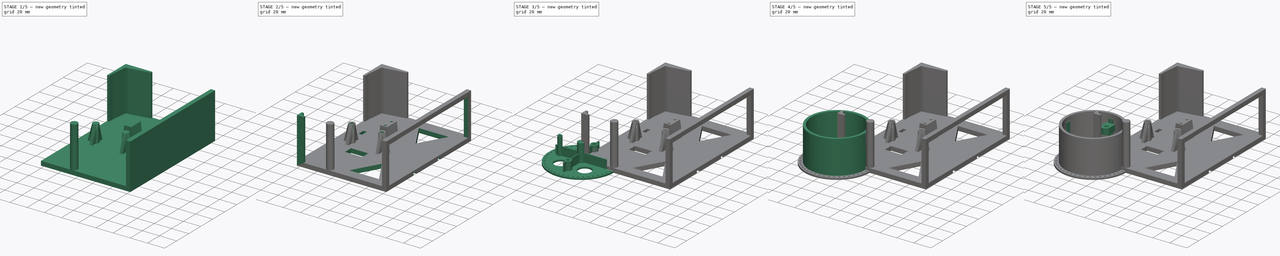
[diagram: build sequence overview — one tinted view per stage of 5, left to right]
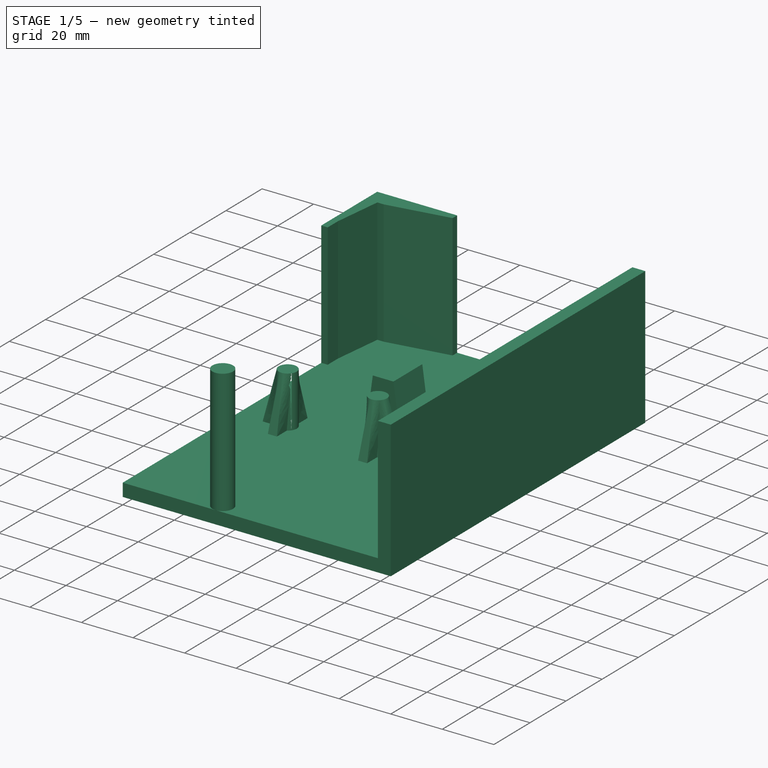
[diagram: stage 1 of 5 — iso view after this stage's code; geometry added in this stage tinted green]
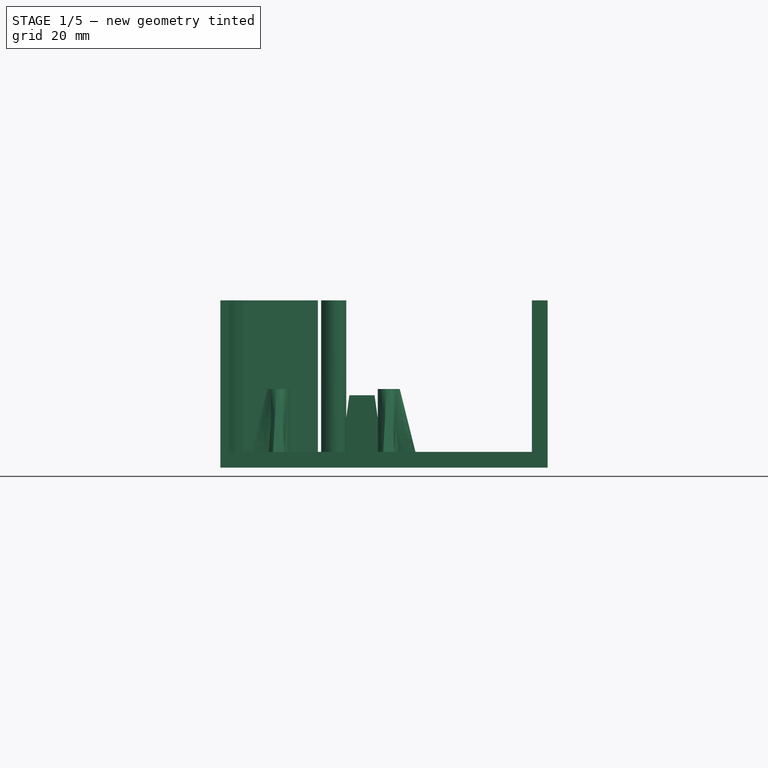
[diagram: stage 1 of 5 — front view after this stage's code; geometry added in this stage tinted green]
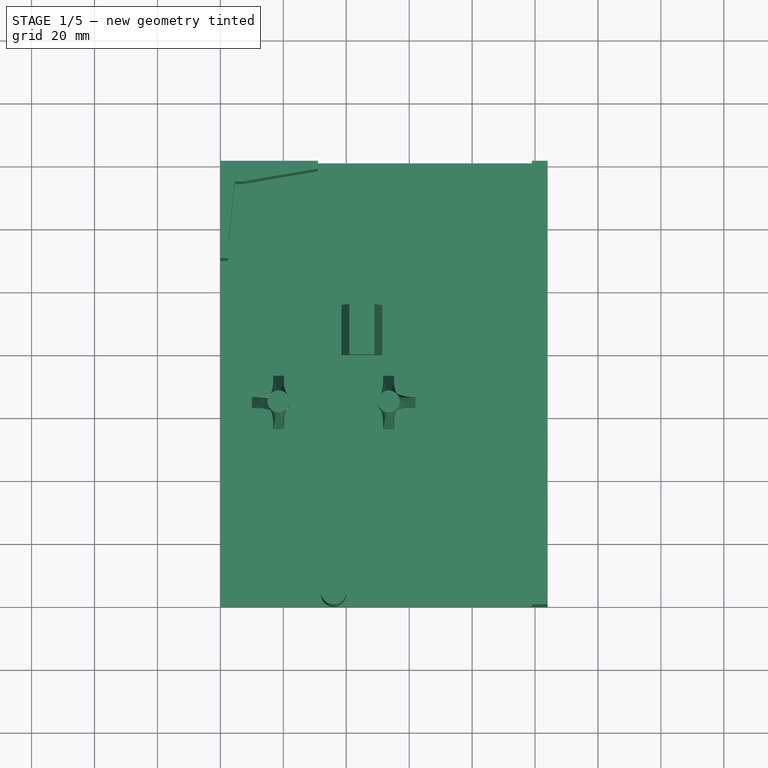
[diagram: stage 1 of 5 — top view after this stage's code; geometry added in this stage tinted green]
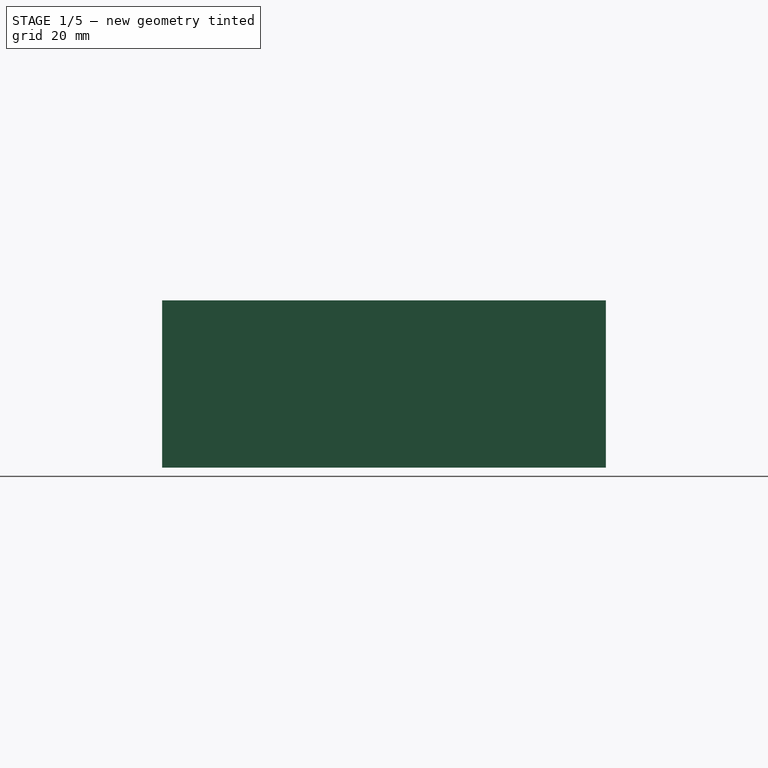
[diagram: stage 1 of 5 — right view after this stage's code; geometry added in this stage tinted green]
FCSTD DOCUMENT  (FreeCAD 1.0R39109 (Git))
Label: splitflap-bit
License: All rights reserved
LicenseURL: https://en.wikipedia.org/wiki/All_rights_reserved
objects: Sketcher::SketchObject×44, PartDesign::Pocket×21, PartDesign::Pad×17, PartDesign::AdditiveLoft×6, PartDesign::Chamfer×5, PartDesign::PolarPattern×4, PartDesign::Body×4, Spreadsheet::Sheet×1, PartDesign::Plane×1, PartDesign::Mirrored×1, PartDesign::Fillet×1
note: 253 computed .brp shape members not serialized (recipe doc carries the construction recipe); baked Part::Feature solids carry a one-line shape summary decoded from their .brp

FEATURE [Sketcher::SketchObject] Sketch024
  ArcFitTolerance = 1e-06
  AttachmentSupport = -> [XY_Plane002]
  FullyConstrained = true
  MakeInternals = false
  MapMode = 5
  expr: Constraints[10] = <<params>>.frame_side_width
  expr: Constraints[9] = <<params>>.frame_height
  sketch-geometry (4):
    g0: LineSegment StartX=0 StartY=0 StartZ=0 EndX=104 EndY=0 EndZ=0
    g1: LineSegment StartX=104 StartY=0 StartZ=0 EndX=104 EndY=141 EndZ=0
    g2: LineSegment StartX=104 StartY=141 StartZ=0 EndX=0 EndY=141 EndZ=0
    g3: LineSegment StartX=0 StartY=141 StartZ=0 EndX=0 EndY=0 EndZ=0
  constraints (11):
    c: Coincident(g0,g1)
    c: Coincident(g1,g2)
    c: Coincident(g2,g3)
    c: Coincident(g3,g0)
    c: Horizontal(g0)
    c: Horizontal(g2)
    c: Vertical(g1)
    c: Vertical(g3)
    c: Coincident(g0,g-1)
    c: DistanceY(g1,g1) = 141
    c: DistanceX(g2,g2) = 104
FEATURE [PartDesign::Pad] Pad009  label="Pad009 (complete frame structure)"
  Direction = (0,0,1)
  Length = 5
  Length2 = 10
  Profile = -> Sketch024
  ReferenceAxis = -> Sketch024 [N_Axis]
  Refine = true
  Suppressed = false
  Type = 0
  expr: Length = <<params>>.frame_thick
FEATURE [Sketcher::SketchObject] Sketch025
  ArcFitTolerance = 1e-06
  AttachmentSupport = -> [Pad009]
  FullyConstrained = true
  MakeInternals = false
  MapMode = 5
  Placement = pos=(0,0,5) rot=(0,0,1;0rad)
  expr: Constraints[0] = <<params>>.motor_mount_diameter
  expr: Constraints[1] = <<params>>.motor_mount_diameter
  expr: Constraints[2] = <<params>>.motor_mount_1_pos_x
  expr: Constraints[3] = <<params>>.motor_mount_2_pos_x
  expr: Constraints[4] = <<params>>.motor_mount_1_pos_y
  expr: Constraints[5] = <<params>>.motor_mount_2_pos_y
  sketch-geometry (2):
    g0: Circle CenterX=18.5 CenterY=65 CenterZ=0 NormalX=0 NormalY=0 NormalZ=1 AngleXU=0 Radius=3.5
    g1: Circle CenterX=53.5 CenterY=65 CenterZ=0 NormalX=0 NormalY=0 NormalZ=1 AngleXU=0 Radius=3.5
  constraints (6):
    c: Diameter(g0) = 7
    c: Diameter(g1) = 7
    c: DistanceX(g-1,g0) = 18.5
    c: DistanceX(g-1,g1) = 53.5
    c: DistanceY(g-1,g0) = 65
    c: DistanceY(g-1,g1) = 65
FEATURE [PartDesign::Pad] Pad010  label="Pad010 (motor mount)"
  BaseFeature = -> Pad009
  Direction = (0,0,1)
  Length = 20
  Length2 = 10
  Profile = -> Sketch025
  ReferenceAxis = -> Sketch025 [N_Axis]
  Refine = true
  Suppressed = false
  Type = 0
  expr: Length = <<params>>.motor_mount_height
FEATURE [PartDesign::Body] Body  label="Drum Inner"
  AllowCompound = false
  Group = -> [Sketch003,Pad002,Sketch004,Pad003,Sketch005,Pad004,Sketch007,Pocket002,Sketch008,Pocket003,PolarPattern,Sketch009,Pocket004,PolarPattern001,Sketch014,Pocket007,Sketch018,Pad007,Sketch019,Pocket010,Sketch047,AdditiveLoft,Sketch048,Pocket031,Sketch049,Pocket032,Chamfer,Chamfer016]
  Origin = -> Origin
  Tip = -> Chamfer016
FEATURE [Sketcher::SketchObject] Sketch050
  ArcFitTolerance = 1e-06
  AttachmentSupport = -> [Pad010]
  FullyConstrained = true
  MakeInternals = false
  MapMode = 5
  Placement = pos=(0,0,5) rot=(0,0,1;0rad)
  expr: Constraints[10] = <<params>>.hall_mount_size_x
  expr: Constraints[11] = <<params>>.hall_mount_pos_x
  expr: Constraints[12] = <<params>>.hall_mount_pos_y
  expr: Constraints[9] = <<params>>.hall_mount_size_y
  sketch-geometry (5):
    g0: LineSegment StartX=41 StartY=96 StartZ=0 EndX=41 EndY=80 EndZ=0
    g1: LineSegment StartX=41 StartY=80 StartZ=0 EndX=49 EndY=80 EndZ=0
    g2: LineSegment StartX=49 StartY=80 StartZ=0 EndX=49 EndY=96 EndZ=0
    g3: LineSegment StartX=49 StartY=96 StartZ=0 EndX=41 EndY=96 EndZ=0
    g4: GeomPoint [constr] X=45 Y=88 Z=0
  constraints (13):
    c: Coincident(g0,g1)
    c: Coincident(g1,g2)
    c: Coincident(g2,g3)
    c: Coincident(g3,g0)
    c: Vertical(g0)
    c: Vertical(g2)
    c: Horizontal(g1)
    c: Horizontal(g3)
    c: Symmetric(g2,g0,g4)
    c: DistanceY(g0,g0) = 16
    c: DistanceX(g3,g3) = 8
    c: DistanceX(g-1,g4) = 45
    c: DistanceY(g-1,g4) = 88
FEATURE [PartDesign::Pad] Pad015  label="Pad015 (hall mount)"
  BaseFeature = -> Pad010
  Direction = (0,0,1)
  Length = 18
  Length2 = 10
  Profile = -> Sketch050
  ReferenceAxis = -> Sketch050 [N_Axis]
  Refine = true
  Suppressed = false
  Type = 0
  expr: Length = <<params>>.hall_mount_height
FEATURE [Sketcher::SketchObject] Sketch051
  ArcFitTolerance = 1e-06
  AttachmentSupport = -> [Pad015]
  FullyConstrained = true
  MakeInternals = false
  MapMode = 5
  Placement = pos=(0,0,5) rot=(0,0,1;0rad)
  expr: Constraints[10] = <<params>>.hall_mount_pos_x
  expr: Constraints[11] = <<params>>.hall_mount_size_y
  expr: Constraints[12] = <<params>>.hall_mount_size_x + 5 mm
  expr: Constraints[9] = <<params>>.hall_mount_pos_y
  sketch-geometry (5):
    g0: LineSegment StartX=38.5 StartY=96 StartZ=0 EndX=38.5 EndY=80 EndZ=0
    g1: LineSegment StartX=38.5 StartY=80 StartZ=0 EndX=51.5 EndY=80 EndZ=0
    g2: LineSegment StartX=51.5 StartY=80 StartZ=0 EndX=51.5 EndY=96 EndZ=0
    g3: LineSegment StartX=51.5 StartY=96 StartZ=0 EndX=38.5 EndY=96 EndZ=0
    g4: GeomPoint [constr] X=45 Y=88 Z=0
  constraints (13):
    c: Coincident(g0,g1)
    c: Coincident(g1,g2)
    c: Coincident(g2,g3)
    c: Coincident(g3,g0)
    c: Vertical(g0)
    c: Vertical(g2)
    c: Horizontal(g1)
    c: Horizontal(g3)
    c: Symmetric(g2,g0,g4)
    c: DistanceY(g-1,g4) = 88
    c: DistanceX(g-1,g4) = 45
    c: DistanceY(g2,g2) = 16
    c: DistanceX(g3,g3) = 13
FEATURE [PartDesign::AdditiveLoft] AdditiveLoft001  label="AdditiveLoft001 (hall mount loft)"
  BaseFeature = -> Pad015
  Closed = false
  Profile = -> Sketch051
  Refine = true
  Ruled = false
  Sections = -> [Pad015]
  Suppressed = false
FEATURE [Sketcher::SketchObject] Sketch052
  ArcFitTolerance = 1e-06
  AttachmentSupport = -> [AdditiveLoft001]
  ExternalGeometry = -> [AdditiveLoft001]
  FullyConstrained = true
  MakeInternals = false
  MapMode = 5
  Placement = pos=(0,0,5) rot=(0,0,1;0rad)
  expr: Constraints[10] = <<params>>.motor_mount_diameter + 10 mm
  expr: Constraints[11] = <<params>>.motor_mount_diameter / 2
  sketch-geometry (5):
    g0: LineSegment StartX=16.75 StartY=73.5 StartZ=0 EndX=16.75 EndY=56.5 EndZ=0
    g1: LineSegment StartX=16.75 StartY=56.5 StartZ=0 EndX=20.25 EndY=56.5 EndZ=0
    g2: LineSegment StartX=20.25 StartY=56.5 StartZ=0 EndX=20.25 EndY=73.5 EndZ=0
    g3: LineSegment StartX=20.25 StartY=73.5 StartZ=0 EndX=16.75 EndY=73.5 EndZ=0
    g4: GeomPoint [constr] X=18.5 Y=65 Z=0
  constraints (12):
    c: Coincident(g0,g1)
    c: Coincident(g1,g2)
    c: Coincident(g2,g3)
    c: Coincident(g3,g0)
    c: Vertical(g0)
    c: Vertical(g2)
    c: Horizontal(g1)
    c: Horizontal(g3)
    c: Symmetric(g2,g0,g4)
    c: Coincident(g4,g-3)
    c: DistanceY(g0,g0) = 17
    c: DistanceX(g3,g3) = 3.5
FEATURE [PartDesign::AdditiveLoft] AdditiveLoft002  label="AdditiveLoft002 (motor mount reinforcement)"
  BaseFeature = -> AdditiveLoft001
  Closed = false
  Profile = -> Sketch052
  Refine = true
  Ruled = false
  Sections = -> [AdditiveLoft001]
  Suppressed = false
FEATURE [Sketcher::SketchObject] Sketch053
  ArcFitTolerance = 1e-06
  AttachmentSupport = -> [AdditiveLoft002]
  ExternalGeometry = -> [AdditiveLoft002]
  FullyConstrained = true
  MakeInternals = false
  MapMode = 5
  Placement = pos=(0,0,5) rot=(0,0,1;0rad)
  expr: Constraints[10] = <<params>>.motor_mount_diameter + 10 mm
  expr: Constraints[11] = <<params>>.motor_mount_diameter / 2
  sketch-geometry (5):
    g0: LineSegment StartX=51.75 StartY=73.5 StartZ=0 EndX=51.75 EndY=56.5 EndZ=0
    g1: LineSegment StartX=51.75 StartY=56.5 StartZ=0 EndX=55.25 EndY=56.5 EndZ=0
    g2: LineSegment StartX=55.25 StartY=56.5 StartZ=0 EndX=55.25 EndY=73.5 EndZ=0
    g3: LineSegment StartX=55.25 StartY=73.5 StartZ=0 EndX=51.75 EndY=73.5 EndZ=0
    g4: GeomPoint [constr] X=53.5 Y=65 Z=0
  constraints (12):
    c: Coincident(g0,g1)
    c: Coincident(g1,g2)
    c: Coincident(g2,g3)
    c: Coincident(g3,g0)
    c: Vertical(g0)
    c: Vertical(g2)
    c: Horizontal(g1)
    c: Horizontal(g3)
    c: Symmetric(g2,g0,g4)
    c: Coincident(g4,g-3)
    c: DistanceY(g2,g2) = 17
    c: DistanceX(g3,g3) = 3.5
FEATURE [PartDesign::AdditiveLoft] AdditiveLoft003  label="AdditiveLoft003 (motor mount reinforcement)"
  BaseFeature = -> AdditiveLoft002
  Closed = false
  Profile = -> Sketch053
  Refine = true
  Ruled = false
  Sections = -> [AdditiveLoft002]
  Suppressed = false
FEATURE [Sketcher::SketchObject] Sketch054
  ArcFitTolerance = 1e-06
  AttachmentSupport = -> [AdditiveLoft003]
  FullyConstrained = true
  MakeInternals = false
  MapMode = 5
  Placement = pos=(0,0,5) rot=(0,0,1;0rad)
  expr: Constraints[10] = <<params>>.motor_mount_1_pos_x - <<params>>.motor_mount_diameter / 2
  expr: Constraints[11] = <<params>>.motor_mount_diameter / 2
  expr: Constraints[12] = 10 mm
  expr: Constraints[9] = <<params>>.motor_mount_1_pos_y
  sketch-geometry (5):
    g0: LineSegment StartX=20 StartY=66.75 StartZ=0 EndX=20 EndY=63.25 EndZ=0
    g1: LineSegment StartX=20 StartY=63.25 StartZ=0 EndX=10 EndY=63.25 EndZ=0
    g2: LineSegment StartX=10 StartY=63.25 StartZ=0 EndX=10 EndY=66.75 EndZ=0
    g3: LineSegment StartX=10 StartY=66.75 StartZ=0 EndX=20 EndY=66.75 EndZ=0
    g4: GeomPoint [constr] X=15 Y=65 Z=0
  constraints (13):
    c: Coincident(g0,g1)
    c: Coincident(g1,g2)
    c: Coincident(g2,g3)
    c: Coincident(g3,g0)
    c: Vertical(g0)
    c: Vertical(g2)
    c: Horizontal(g1)
    c: Horizontal(g3)
    c: Symmetric(g2,g0,g4)
    c: DistanceY(g-1,g4) = 65
    c: Distance(g4,g-2) = 15
    c: DistanceY(g0,g0) = 3.5
    c: DistanceX(g3,g3) = 10
FEATURE [PartDesign::AdditiveLoft] AdditiveLoft004  label="AdditiveLoft004 (motor mount reinforcement)"
  BaseFeature = -> AdditiveLoft003
  Closed = false
  Profile = -> Sketch054
  Refine = true
  Ruled = false
  Sections = -> [AdditiveLoft003]
  Suppressed = false
FEATURE [Sketcher::SketchObject] Sketch055
  ArcFitTolerance = 1e-06
  AttachmentSupport = -> [AdditiveLoft004]
  FullyConstrained = true
  MakeInternals = false
  MapMode = 5
  Placement = pos=(0,0,5) rot=(0,0,1;0rad)
  expr: Constraints[10] = <<params>>.motor_mount_2_pos_x + <<params>>.motor_mount_diameter / 2
  expr: Constraints[12] = <<params>>.motor_mount_diameter / 2
  expr: Constraints[9] = <<params>>.motor_mount_2_pos_y
  sketch-geometry (5):
    g0: LineSegment StartX=52 StartY=63.25 StartZ=0 EndX=52 EndY=66.75 EndZ=0
    g1: LineSegment StartX=52 StartY=66.75 StartZ=0 EndX=62 EndY=66.75 EndZ=0
    g2: LineSegment StartX=62 StartY=66.75 StartZ=0 EndX=62 EndY=63.25 EndZ=0
    g3: LineSegment StartX=62 StartY=63.25 StartZ=0 EndX=52 EndY=63.25 EndZ=0
    g4: GeomPoint [constr] X=57 Y=65 Z=0
  constraints (13):
    c: Coincident(g0,g1)
    c: Coincident(g1,g2)
    c: Coincident(g2,g3)
    c: Coincident(g3,g0)
    c: Vertical(g0)
    c: Vertical(g2)
    c: Horizontal(g1)
    c: Horizontal(g3)
    c: Symmetric(g2,g0,g4)
    c: DistanceY(g-1,g4) = 65
    c: Distance(g4,g-2) = 57
    c: DistanceX(g1,g1) = 10
    c: DistanceY(g2,g2) = 3.5
FEATURE [PartDesign::AdditiveLoft] AdditiveLoft005  label="AdditiveLoft005 (motor mount reinforcement)"
  BaseFeature = -> AdditiveLoft004
  Closed = false
  Profile = -> Sketch055
  Refine = true
  Ruled = false
  Sections = -> [AdditiveLoft004]
  Suppressed = false
FEATURE [Sketcher::SketchObject] Sketch056
  ArcFitTolerance = 1e-06
  AttachmentSupport = -> [AdditiveLoft005]
  FullyConstrained = true
  MakeInternals = false
  MapMode = 5
  Placement = pos=(0,0,5) rot=(0,0,1;0rad)
  expr: Constraints[0] = <<params>>.flap_sound_bar_pos_y
  expr: Constraints[1] = <<params>>.flap_sound_bar_pos_x
  expr: Constraints[2] = <<params>>.flap_sound_bar_diameter
  sketch-geometry (1):
    g0: Circle CenterX=36 CenterY=4 CenterZ=0 NormalX=0 NormalY=0 NormalZ=1 AngleXU=0 Radius=4
  constraints (3):
    c: DistanceY(g-1,g0) = 4
    c: DistanceX(g-1,g0) = 36
    c: Diameter(g0) = 8
FEATURE [PartDesign::Pad] Pad016  label="Pad016 (sound bar)"
  BaseFeature = -> AdditiveLoft005
  Direction = (0,0,1)
  Length = 48.15
  Length2 = 10
  Profile = -> Sketch056
  ReferenceAxis = -> Sketch056 [N_Axis]
  Refine = true
  Suppressed = false
  Type = 0
  expr: Length = <<params>>.flap_sound_bar_length
FEATURE [Sketcher::SketchObject] Sketch057
  ArcFitTolerance = 1e-06
  AttachmentSupport = -> [Pad016]
  FullyConstrained = false
  MakeInternals = false
  MapMode = 5
  Placement = pos=(0,0,5) rot=(0,0,1;0rad)
  expr: Constraints[16] = <<params>>.frame_height
  expr: Constraints[17] = <<params>>.frame_front_window_top_dist
  expr: Constraints[18] = <<params>>.frame_front_window_top_dist
  sketch-geometry (8):
    g0: LineSegment StartX=0 StartY=141 StartZ=0 EndX=0 EndY=110 EndZ=0
    g1: LineSegment StartX=0 StartY=110 StartZ=0 EndX=2.5 EndY=110 EndZ=0
    g2: LineSegment StartX=2.5 StartY=110 StartZ=0 EndX=2.5 EndY=115.731 EndZ=0
    g3: LineSegment StartX=2.5 StartY=115.731 StartZ=0 EndX=4.64186 EndY=134.414 EndZ=0
    g4: LineSegment StartX=4.64186 StartY=134.414 StartZ=0 EndX=7.14186 EndY=134.414 EndZ=0
    g5: LineSegment StartX=7.14186 StartY=134.414 StartZ=0 EndX=31 EndY=138.5 EndZ=0
    g6: LineSegment StartX=31 StartY=138.5 StartZ=0 EndX=31 EndY=141 EndZ=0
    g7: LineSegment StartX=31 StartY=141 StartZ=0 EndX=0 EndY=141 EndZ=0
  constraints (21):
    c: PointOnObject(g0,g-2)
    c: PointOnObject(g0,g-2)
    c: Coincident(g0,g1)
    c: Horizontal(g1)
    c: Coincident(g1,g2)
    c: Vertical(g2)
    c: Coincident(g2,g3)
    c: Coincident(g3,g4)
    c: Horizontal(g4)
    c: Coincident(g4,g5)
    c: Coincident(g5,g6)
    c: Vertical(g6)
    c: Coincident(g6,g7)
    c: Coincident(g7,g0)
    c: Horizontal(g7)
    c: DistanceX(g1,g1) = 2.5
    c: DistanceY(g-1,g0) = 141
    c: DistanceY(g0,g0) = 31
    c: DistanceX(g7,g7) = 31
    c: DistanceX(g4,g4) = 2.5
    c: DistanceY(g6,g6) = 2.5
FEATURE [PartDesign::Pad] Pad017  label="Pad017 (flap stop top)"
  BaseFeature = -> Pad016
  Direction = (0,0,1)
  Length = 48.15
  Length2 = 10
  Profile = -> Sketch057
  ReferenceAxis = -> Sketch057 [N_Axis]
  Refine = true
  Suppressed = false
  Type = 0
  expr: Length = <<params>>.flap_sound_bar_length
FEATURE [Sketcher::SketchObject] Sketch058
  ArcFitTolerance = 1e-06
  AttachmentSupport = -> [Pad017]
  ExternalGeometry = -> [Pad017]
  FullyConstrained = true
  MakeInternals = false
  MapMode = 5
  Placement = pos=(0,0,5) rot=(0,0,1;0rad)
  expr: Constraints[10] = <<params>>.frame_thick
  sketch-geometry (4):
    g0: LineSegment StartX=104 StartY=141 StartZ=0 EndX=99 EndY=141 EndZ=0
    g1: LineSegment StartX=99 StartY=141 StartZ=0 EndX=99 EndY=0 EndZ=0
    g2: LineSegment StartX=99 StartY=0 StartZ=0 EndX=104 EndY=0 EndZ=0
    g3: LineSegment StartX=104 StartY=0 StartZ=0 EndX=104 EndY=141 EndZ=0
  constraints (11):
    c: Coincident(g0,g1)
    c: Coincident(g1,g2)
    c: Coincident(g2,g3)
    c: Coincident(g3,g0)
    c: Horizontal(g0)
    c: Horizontal(g2)
    c: Vertical(g1)
    c: Vertical(g3)
    c: Coincident(g0,g-4)
    c: PointOnObject(g1,g-1)
    c: DistanceX(g0,g0) = 5
FEATURE [PartDesign::Pad] Pad018  label="Pad018 (frame backside)"
  BaseFeature = -> Pad017
  Direction = (0,0,1)
  Length = 48.15
  Length2 = 10
  Profile = -> Sketch058
  ReferenceAxis = -> Sketch058 [N_Axis]
  Refine = true
  Suppressed = false
  Type = 0
  expr: Length = <<params>>.flap_sound_bar_length
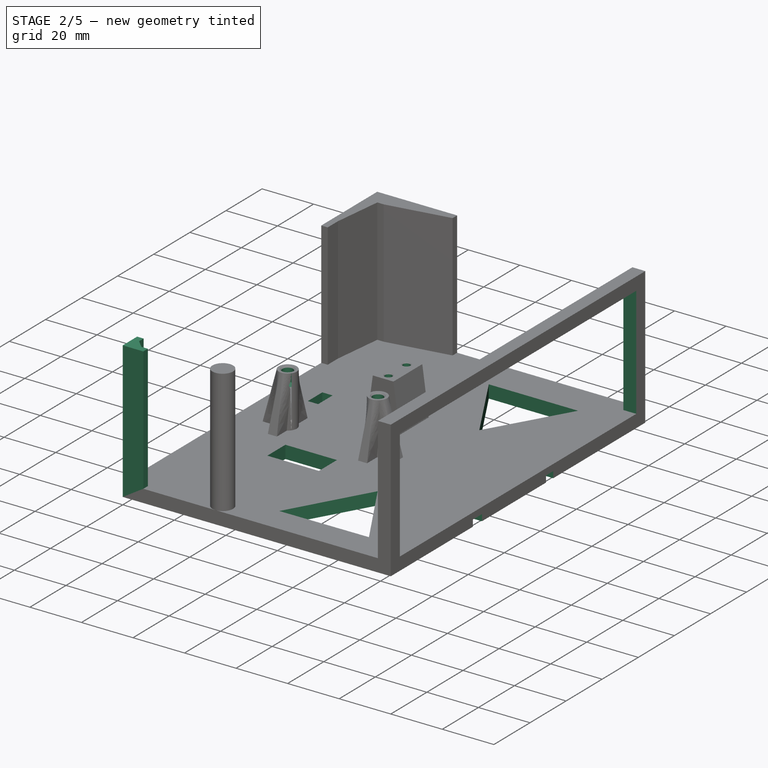
[diagram: stage 2 of 5 — iso view after this stage's code; geometry added in this stage tinted green]
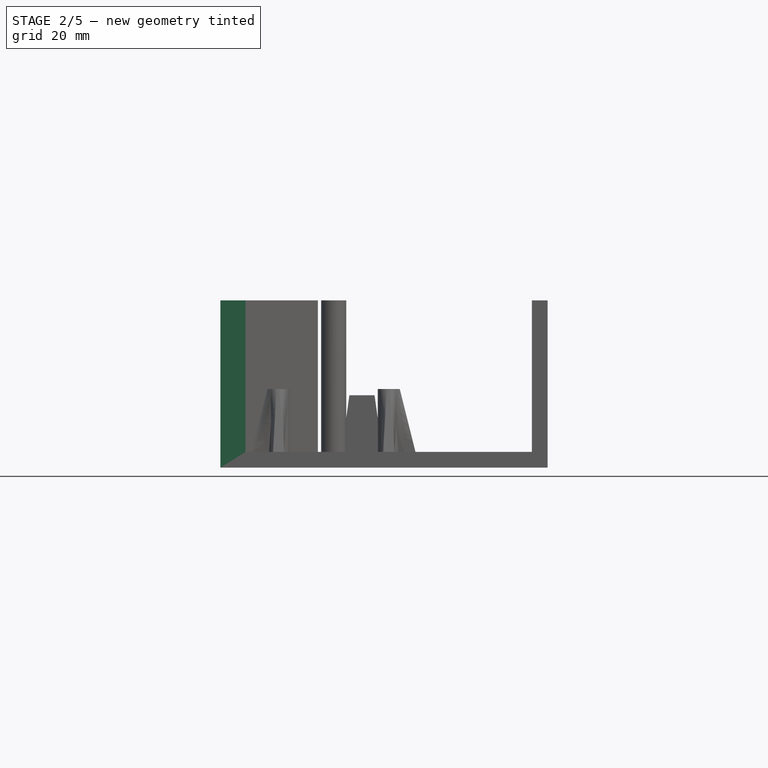
[diagram: stage 2 of 5 — front view after this stage's code; geometry added in this stage tinted green]
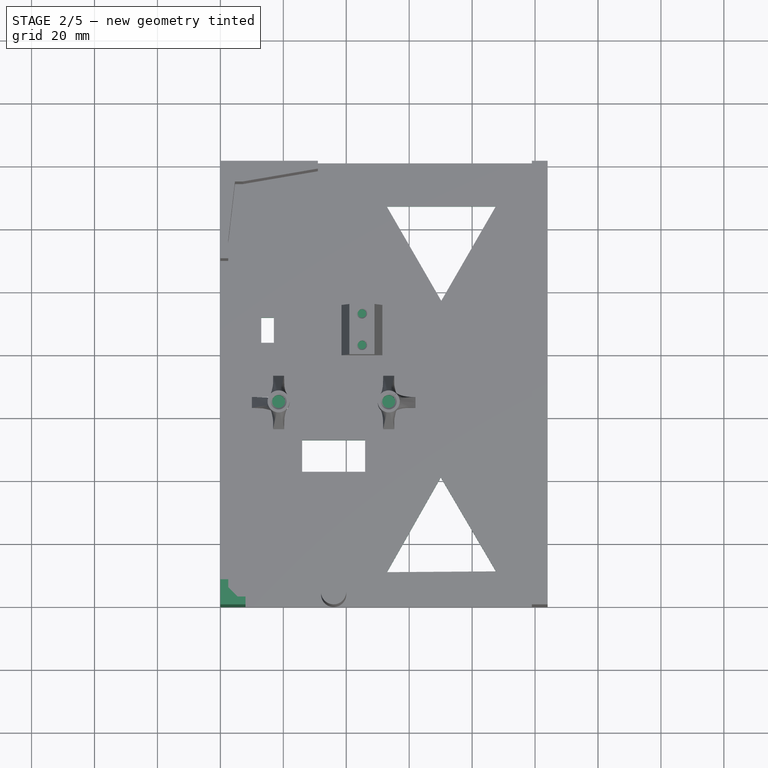
[diagram: stage 2 of 5 — top view after this stage's code; geometry added in this stage tinted green]
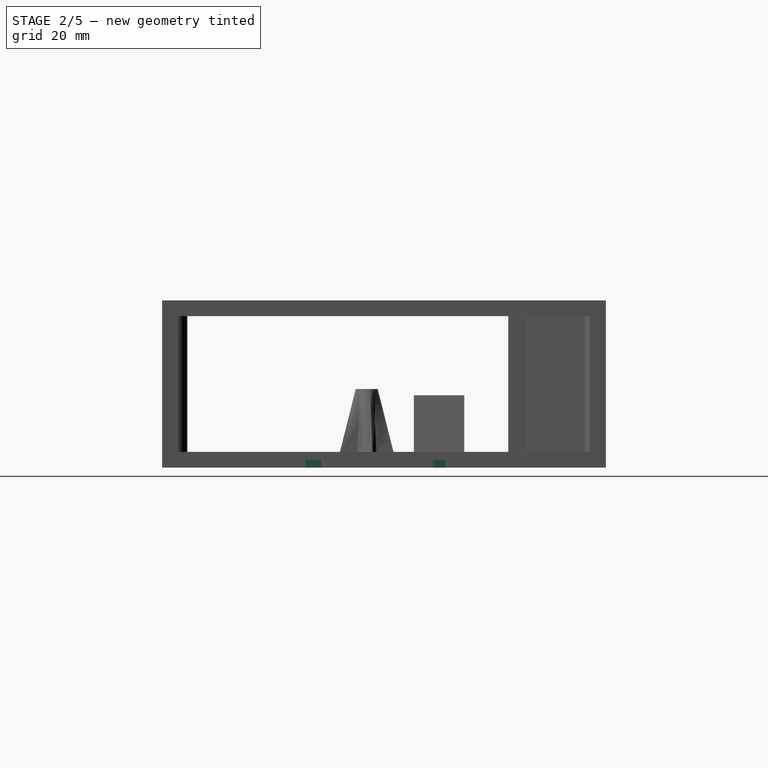
[diagram: stage 2 of 5 — right view after this stage's code; geometry added in this stage tinted green]
FEATURE [Sketcher::SketchObject] Sketch059
  ArcFitTolerance = 1e-06
  AttachmentSupport = -> [Pad018]
  FullyConstrained = true
  MakeInternals = false
  MapMode = 5
  Placement = pos=(0,0,25) rot=(0,0,1;0rad)
  expr: Constraints[0] = <<params>>.motor_mount_1_pos_y
  expr: Constraints[1] = <<params>>.motor_mount_2_pos_y
  expr: Constraints[2] = <<params>>.motor_mount_1_pos_x
  expr: Constraints[3] = <<params>>.motor_mount_2_pos_x
  expr: Constraints[4] = <<params>>.std_screw_diameter
  expr: Constraints[5] = <<params>>.std_screw_diameter
  sketch-geometry (2):
    g0: Circle CenterX=18.5 CenterY=65 CenterZ=0 NormalX=0 NormalY=0 NormalZ=1 AngleXU=0 Radius=2.05
    g1: Circle CenterX=53.5 CenterY=65 CenterZ=0 NormalX=0 NormalY=0 NormalZ=1 AngleXU=0 Radius=2.05
  constraints (6):
    c: DistanceY(g-1,g0) = 65
    c: DistanceY(g-1,g1) = 65
    c: Distance(g0,g-2) = 18.5
    c: Distance(g1,g-2) = 53.5
    c: Diameter(g0) = 4.1
    c: Diameter(g1) = 4.1
FEATURE [PartDesign::Pocket] Pocket033  label="Pocket033 (motor mount screws)"
  BaseFeature = -> Pad018
  Direction = (0,0,-1)
  Length = 5.5
  Length2 = 5
  Profile = -> Sketch059
  ReferenceAxis = -> Sketch059 [N_Axis]
  Refine = true
  Suppressed = false
  Type = 0
  expr: Length = <<params>>.std_screw_depth
FEATURE [Sketcher::SketchObject] Sketch060
  ArcFitTolerance = 1e-06
  AttachmentSupport = -> [Pocket033]
  ExternalGeometry = -> [Pocket033]
  FullyConstrained = true
  MakeInternals = false
  MapMode = 5
  Placement = pos=(0,0,23) rot=(0,0,1;0rad)
  expr: Constraints[0] = <<params>>.hall_screw_diameter
  expr: Constraints[1] = <<params>>.hall_screw_diameter
  expr: Constraints[2] = <<params>>.hall_mount_pos_x
  expr: Constraints[3] = <<params>>.hall_mount_pos_x
  expr: Constraints[4] = <<params>>.hall_screw_dist
  expr: Constraints[5] = (<<params>>.hall_mount_size_y - <<params>>.hall_screw_dist) / 2
  sketch-geometry (2):
    g0: Circle CenterX=45 CenterY=93 CenterZ=0 NormalX=0 NormalY=0 NormalZ=1 AngleXU=0 Radius=1.35
    g1: Circle CenterX=45 CenterY=83 CenterZ=0 NormalX=0 NormalY=0 NormalZ=1 AngleXU=0 Radius=1.35
  constraints (6):
    c: Diameter(g0) = 2.7
    c: Diameter(g1) = 2.7
    c: Distance(g0,g-2) = 45
    c: Distance(g1,g-2) = 45
    c: DistanceY(g1,g0) = 10
    c: Distance(g0,g-3) = 3
FEATURE [PartDesign::Pocket] Pocket034  label="Pocket034 (hall mount screws)"
  BaseFeature = -> Pocket033
  Direction = (0,0,-1)
  Length = 3.9
  Length2 = 5
  Profile = -> Sketch060
  ReferenceAxis = -> Sketch060 [N_Axis]
  Refine = true
  Suppressed = false
  Type = 0
  expr: Length = <<params>>.hall_screw_depth
FEATURE [Sketcher::SketchObject] Sketch061
  ArcFitTolerance = 1e-06
  AttachmentSupport = -> [Pocket034]
  ExternalGeometry = -> [Pocket034]
  FullyConstrained = true
  MakeInternals = false
  MapMode = 5
  Placement = pos=(104,0,0) rot=(0.57735,0.57735,0.57735;2.0944rad)
  expr: Constraints[10] = <<params>>.frame_thick
  expr: Constraints[11] = <<params>>.frame_thick
  expr: Constraints[8] = <<params>>.frame_thick
  expr: Constraints[9] = <<params>>.frame_thick
  sketch-geometry (4):
    g0: LineSegment StartX=5 StartY=48.15 StartZ=0 EndX=5 EndY=5 EndZ=0
    g1: LineSegment StartX=5 StartY=5 StartZ=0 EndX=136 EndY=5 EndZ=0
    g2: LineSegment StartX=136 StartY=5 StartZ=0 EndX=136 EndY=48.15 EndZ=0
    g3: LineSegment StartX=136 StartY=48.15 StartZ=0 EndX=5 EndY=48.15 EndZ=0
  constraints (12):
    c: Coincident(g0,g1)
    c: Coincident(g1,g2)
    c: Coincident(g2,g3)
    c: Coincident(g3,g0)
    c: Vertical(g0)
    c: Vertical(g2)
    c: Horizontal(g1)
    c: Horizontal(g3)
    c: Distance(g-3,g3) = 5
    c: Distance(g-4,g1) = 5
    c: Distance(g-5,g2) = 5
    c: Distance(g-6,g0) = 5
FEATURE [PartDesign::Pocket] Pocket035  label="Pocket035 (frame backside hole)"
  BaseFeature = -> Pocket034
  Direction = (-1,0,0)
  Length = 5
  Length2 = 5
  Profile = -> Sketch061
  ReferenceAxis = -> Sketch061 [N_Axis]
  Refine = true
  Suppressed = false
  Type = 0
FEATURE [PartDesign::Chamfer] Chamfer017  label="Chamfer017 (motor screw chamfer)"
  Angle = 45
  Base = -> Pocket035 [Edge184,Edge142]
  BaseFeature = -> Pocket035
  ChamferType = 0
  FlipDirection = false
  Refine = true
  Size = 0.5
  Size2 = 1
  SupportTransform = false
  Suppressed = false
  UseAllEdges = false
  expr: Size = <<params>>.std_screw_chamfer
FEATURE [PartDesign::Chamfer] Chamfer018  label="Chamfer018 (hall screw chamfer)"
  Angle = 45
  Base = -> Chamfer017 [Edge202,Edge201]
  BaseFeature = -> Chamfer017
  ChamferType = 0
  FlipDirection = false
  Refine = true
  Size = 0.3
  Size2 = 1
  SupportTransform = false
  Suppressed = false
  UseAllEdges = false
  expr: Size = <<params>>.hall_screw_chamfer
FEATURE [Sketcher::SketchObject] Sketch062
  ArcFitTolerance = 1e-06
  AttachmentSupport = -> [Chamfer018]
  FullyConstrained = true
  MakeInternals = false
  MapMode = 5
  Placement = pos=(0,0,5) rot=(0,0,1;0rad)
  expr: Constraints[10] = <<params>>.frame_left_cable_hole_center_pos_x
  expr: Constraints[11] = <<params>>.frame_left_cable_hole_width
  expr: Constraints[12] = <<params>>.frame_left_cable_hole_height
  expr: Constraints[9] = <<params>>.frame_left_cable_hole_center_pos_y
  sketch-geometry (5):
    g0: LineSegment StartX=26 StartY=53 StartZ=0 EndX=26 EndY=43 EndZ=0
    g1: LineSegment StartX=26 StartY=43 StartZ=0 EndX=46 EndY=43 EndZ=0
    g2: LineSegment StartX=46 StartY=43 StartZ=0 EndX=46 EndY=53 EndZ=0
    g3: LineSegment StartX=46 StartY=53 StartZ=0 EndX=26 EndY=53 EndZ=0
    g4: GeomPoint [constr] X=36 Y=48 Z=0
  constraints (13):
    c: Coincident(g0,g1)
    c: Coincident(g1,g2)
    c: Coincident(g2,g3)
    c: Coincident(g3,g0)
    c: Vertical(g0)
    c: Vertical(g2)
    c: Horizontal(g1)
    c: Horizontal(g3)
    c: Symmetric(g2,g0,g4)
    c: DistanceY(g-1,g4) = 48
    c: Distance(g4,g-2) = 36
    c: DistanceX(g3,g3) = 20
    c: DistanceY(g0,g0) = 10
FEATURE [PartDesign::Pocket] Pocket036  label="Pocket036 (cable hole)"
  BaseFeature = -> Chamfer018
  Direction = (0,0,-1)
  Length = 5
  Length2 = 5
  Profile = -> Sketch062
  ReferenceAxis = -> Sketch062 [N_Axis]
  Refine = true
  Suppressed = false
  Type = 1
FEATURE [Sketcher::SketchObject] Sketch063
  ArcFitTolerance = 1e-06
  AttachmentSupport = -> [Pocket036]
  ExternalGeometry = -> [Pocket036]
  FullyConstrained = true
  MakeInternals = false
  MapMode = 5
  Placement = pos=(0,0,0) rot=(1,0,0;3.14159rad)
  expr: Constraints[10] = <<params>>.frame_left_cable_hole_height / 2
  expr: Constraints[9] = <<params>>.frame_left_cable_hole_center_pos_y
  sketch-geometry (5):
    g0: LineSegment StartX=46 StartY=-45.5 StartZ=0 EndX=46 EndY=-50.5 EndZ=0
    g1: LineSegment StartX=46 StartY=-50.5 StartZ=0 EndX=104 EndY=-50.5 EndZ=0
    g2: LineSegment StartX=104 StartY=-50.5 StartZ=0 EndX=104 EndY=-45.5 EndZ=0
    g3: LineSegment StartX=104 StartY=-45.5 StartZ=0 EndX=46 EndY=-45.5 EndZ=0
    g4: GeomPoint [constr] X=75 Y=-48 Z=0
  constraints (13):
    c: Coincident(g0,g1)
    c: Coincident(g1,g2)
    c: Coincident(g2,g3)
    c: Coincident(g3,g0)
    c: Vertical(g0)
    c: Vertical(g2)
    c: Horizontal(g1)
    c: Horizontal(g3)
    c: Symmetric(g2,g0,g4)
    c: DistanceY(g4,g-1) = 48
    c: DistanceY(g2,g2) = 5
    c: PointOnObject(g0,g-3)
    c: PointOnObject(g2,g-4)
FEATURE [PartDesign::Pocket] Pocket037  label="Pocket037 (cable canal)"
  BaseFeature = -> Pocket036
  Direction = (0,0,1)
  Length = 2.5
  Length2 = 5
  Profile = -> Sketch063
  ReferenceAxis = -> Sketch063 [N_Axis]
  Refine = true
  Suppressed = false
  Type = 0
FEATURE [Sketcher::SketchObject] Sketch064
  ArcFitTolerance = 1e-06
  AttachmentSupport = -> [Pocket037]
  FullyConstrained = true
  MakeInternals = false
  MapMode = 5
  Placement = pos=(0,0,5) rot=(0,0,1;0rad)
  expr: Constraints[14] = <<params>>.flap_sound_bar_diameter
  expr: Constraints[15] = <<params>>.flap_sound_bar_diameter
  sketch-geometry (7):
    g0: LineSegment StartX=0 StartY=0 StartZ=0 EndX=0 EndY=8 EndZ=0
    g1: LineSegment StartX=0 StartY=8 StartZ=0 EndX=2.5 EndY=8 EndZ=0
    g2: LineSegment StartX=2.5 StartY=8 StartZ=0 EndX=2.5 EndY=5.5 EndZ=0
    g3: LineSegment StartX=2.5 StartY=5.5 StartZ=0 EndX=5.5 EndY=2.5 EndZ=0
    g4: LineSegment StartX=5.5 StartY=2.5 StartZ=0 EndX=8 EndY=2.5 EndZ=0
    g5: LineSegment StartX=8 StartY=2.5 StartZ=0 EndX=8 EndY=0 EndZ=0
    g6: LineSegment StartX=8 StartY=0 StartZ=0 EndX=0 EndY=0 EndZ=0
  constraints (20):
    c: Coincident(g-1,g0)
    c: PointOnObject(g0,g-2)
    c: Coincident(g0,g1)
    c: Horizontal(g1)
    c: Coincident(g1,g2)
    c: Vertical(g2)
    c: Coincident(g2,g3)
    c: Coincident(g3,g4)
    c: Horizontal(g4)
    c: Coincident(g4,g5)
    c: PointOnObject(g5,g-1)
    c: Vertical(g5)
    c: Coincident(g5,g6)
    c: Coincident(g6,g0)
    c: DistanceY(g0,g0) = 8
    c: DistanceX(g6,g6) = 8
    c: DistanceX(g1,g1) = 2.5  'd'
    c: DistanceY(g5,g5) = 2.5
    c: DistanceY(g2,g2) = 2.5
    c: DistanceX(g4,g4) = 2.5
FEATURE [PartDesign::Pad] Pad019  label="Pad019 (front bottom stand)"
  BaseFeature = -> Pocket037
  Direction = (0,0,1)
  Length = 48.15
  Length2 = 10
  Profile = -> Sketch064
  ReferenceAxis = -> Sketch064 [N_Axis]
  Refine = true
  Suppressed = false
  Type = 0
  expr: Length = <<params>>.flap_sound_bar_length
FEATURE [Sketcher::SketchObject] Sketch065
  ArcFitTolerance = 1e-06
  AttachmentSupport = -> [Pad019]
  FullyConstrained = true
  MakeInternals = false
  MapMode = 5
  Placement = pos=(0,0,5) rot=(0,0,1;0rad)
  expr: Constraints[10] = <<params>>.hall_mount_pos_x - 30 mm
  expr: Constraints[11] = <<params>>.hall_mount_size_y / 2
  expr: Constraints[12] = <<params>>.hall_mount_size_x / 2
  expr: Constraints[9] = <<params>>.hall_mount_pos_y
  sketch-geometry (5):
    g0: LineSegment StartX=13 StartY=92 StartZ=0 EndX=13 EndY=84 EndZ=0
    g1: LineSegment StartX=13 StartY=84 StartZ=0 EndX=17 EndY=84 EndZ=0
    g2: LineSegment StartX=17 StartY=84 StartZ=0 EndX=17 EndY=92 EndZ=0
    g3: LineSegment StartX=17 StartY=92 StartZ=0 EndX=13 EndY=92 EndZ=0
    g4: GeomPoint [constr] X=15 Y=88 Z=0
  constraints (13):
    c: Coincident(g0,g1)
    c: Coincident(g1,g2)
    c: Coincident(g2,g3)
    c: Coincident(g3,g0)
    c: Vertical(g0)
    c: Vertical(g2)
    c: Horizontal(g1)
    c: Horizontal(g3)
    c: Symmetric(g2,g0,g4)
    c: DistanceY(g-1,g4) = 88
    c: DistanceX(g-1,g4) = 15
    c: DistanceY(g2,g2) = 8
    c: DistanceX(g3,g3) = 4
FEATURE [PartDesign::Pocket] Pocket038  label="Pocket038 (hall cable hole)"
  BaseFeature = -> Pad019
  Direction = (0,0,-1)
  Length = 5
  Length2 = 5
  Profile = -> Sketch065
  ReferenceAxis = -> Sketch065 [N_Axis]
  Refine = true
  Suppressed = false
  Type = 1
FEATURE [Sketcher::SketchObject] Sketch066
  ArcFitTolerance = 1e-06
  AttachmentSupport = -> [Pocket038]
  ExternalGeometry = -> [Pocket038]
  FullyConstrained = true
  MakeInternals = false
  MapMode = 5
  Placement = pos=(0,0,0) rot=(1,0,0;3.14159rad)
  expr: Constraints[12] = <<params>>.hall_mount_size_y / 4
  expr: Constraints[9] = <<params>>.hall_mount_pos_y
  sketch-geometry (5):
    g0: LineSegment StartX=17 StartY=-86 StartZ=0 EndX=17 EndY=-90 EndZ=0
    g1: LineSegment StartX=17 StartY=-90 StartZ=0 EndX=104 EndY=-90 EndZ=0
    g2: LineSegment StartX=104 StartY=-90 StartZ=0 EndX=104 EndY=-86 EndZ=0
    g3: LineSegment StartX=104 StartY=-86 StartZ=0 EndX=17 EndY=-86 EndZ=0
    g4: GeomPoint [constr] X=60.5 Y=-88 Z=0
  constraints (13):
    c: Coincident(g0,g1)
    c: Coincident(g1,g2)
    c: Coincident(g2,g3)
    c: Coincident(g3,g0)
    c: Vertical(g0)
    c: Vertical(g2)
    c: Horizontal(g1)
    c: Horizontal(g3)
    c: Symmetric(g2,g0,g4)
    c: DistanceY(g4,g-1) = 88
    c: PointOnObject(g0,g-4)
    c: PointOnObject(g2,g-3)
    c: DistanceY(g0,g0) = 4
FEATURE [PartDesign::Pocket] Pocket039  label="Pocket039 (hall cable canal)"
  BaseFeature = -> Pocket038
  Direction = (0,0,1)
  Length = 2.5
  Length2 = 5
  Profile = -> Sketch066
  ReferenceAxis = -> Sketch066 [N_Axis]
  Refine = true
  Suppressed = false
  Type = 0
FEATURE [Sketcher::SketchObject] Sketch067
  ArcFitTolerance = 1e-06
  AttachmentSupport = -> [Pocket039]
  FullyConstrained = false
  MakeInternals = false
  MapMode = 5
  Placement = pos=(0,0,5) rot=(0,0,1;0rad)
  sketch-geometry (9):
    g0: LineSegment StartX=70.197 StartY=97.3054 StartZ=0 EndX=87.5175 EndY=127.305 EndZ=0
    g1: LineSegment StartX=87.5175 StartY=127.305 StartZ=0 EndX=52.8765 EndY=127.305 EndZ=0
    g2: LineSegment StartX=52.8765 StartY=127.305 StartZ=0 EndX=70.197 EndY=97.3054 EndZ=0
    g3: Circle [constr] CenterX=70.197 CenterY=117.305 CenterZ=0 NormalX=0 NormalY=0 NormalZ=1 AngleXU=0 Radius=20
    g4: LineSegment StartX=70.0524 StartY=41.202 StartZ=0 EndX=52.9492 EndY=11.0776 EndZ=0
    g5: LineSegment StartX=52.9492 StartY=11.0776 StartZ=0 EndX=87.5893 EndY=11.328 EndZ=0
    g6: LineSegment StartX=87.5893 StartY=11.328 StartZ=0 EndX=70.0524 EndY=41.202 EndZ=0
    g7: Circle [constr] CenterX=70.197 CenterY=21.2025 CenterZ=0 NormalX=0 NormalY=0 NormalZ=1 AngleXU=0 Radius=20
    g8: LineSegment [constr] StartX=70.197 StartY=127.305 StartZ=0 EndX=70.197 EndY=7.67623 EndZ=0
  constraints (22):
    c: Coincident(g0,g1)
    c: Coincident(g1,g2)
    c: Coincident(g2,g0)
    c: Equal(g0,g1)
    c: Equal(g0,g2)
    c: PointOnObject(g0,g3)
    c: PointOnObject(g1,g3)
    c: PointOnObject(g2,g3)
    c: Radius(g3) = 20
    c: Coincident(g4,g5)
    c: Coincident(g5,g6)
    c: Coincident(g6,g4)
    c: Equal(g4,g5)
    c: Equal(g4,g6)
    c: PointOnObject(g4,g7)
    c: PointOnObject(g5,g7)
    c: PointOnObject(g6,g7)
    c: Radius(g7) = 20
    c: Symmetric(g1,g1,g8)
    c: Vertical(g8)
    c: PointOnObject(g3,g8)
    c: PointOnObject(g7,g8)
FEATURE [PartDesign::Pocket] Pocket040
  BaseFeature = -> Pocket039
  Direction = (0,0,-1)
  Length = 5
  Length2 = 5
  Profile = -> Sketch067
  ReferenceAxis = -> Sketch067 [N_Axis]
  Refine = true
  Suppressed = false
  Type = 1
FEATURE [PartDesign::Body] Body002  label="Frame Left"
  AllowCompound = false
  Group = -> [Sketch024,Pad009,Sketch025,Pad010,Sketch050,Pad015,Sketch051,AdditiveLoft001,Sketch052,AdditiveLoft002,Sketch053,AdditiveLoft003,Sketch054,AdditiveLoft004,Sketch055,AdditiveLoft005,Sketch056,Pad016,Sketch057,Pad017,Sketch058,Pad018,Sketch059,Pocket033,Sketch060,Pocket034,Sketch061,Pocket035,Chamfer017,Chamfer018,Sketch062,Pocket036,Sketch063,Pocket037,Sketch064,Pad019,Sketch065,Pocket038,+4 more]
  Origin = -> Origin002
  Tip = -> Pocket040
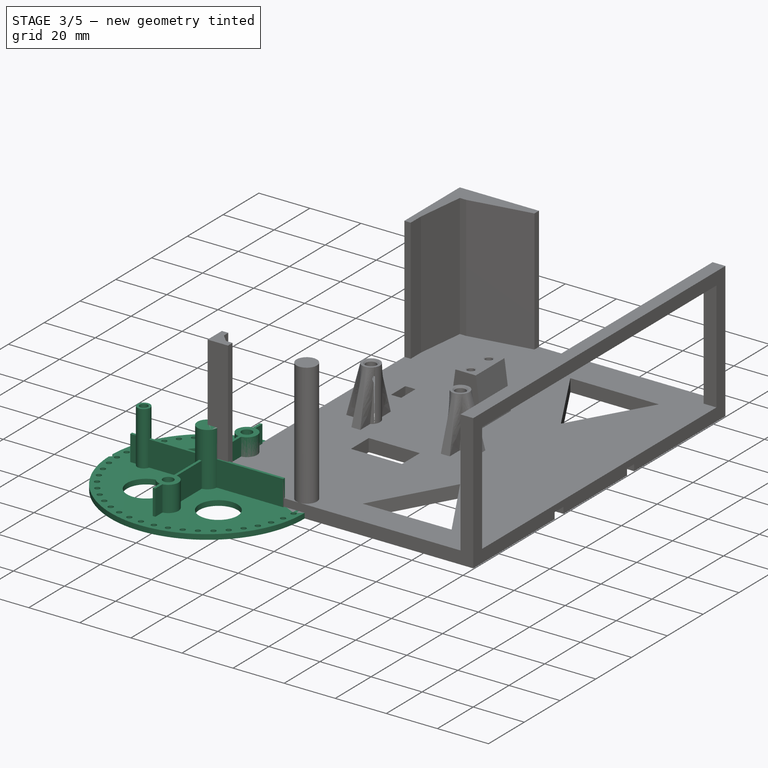
[diagram: stage 3 of 5 — iso view after this stage's code; geometry added in this stage tinted green]
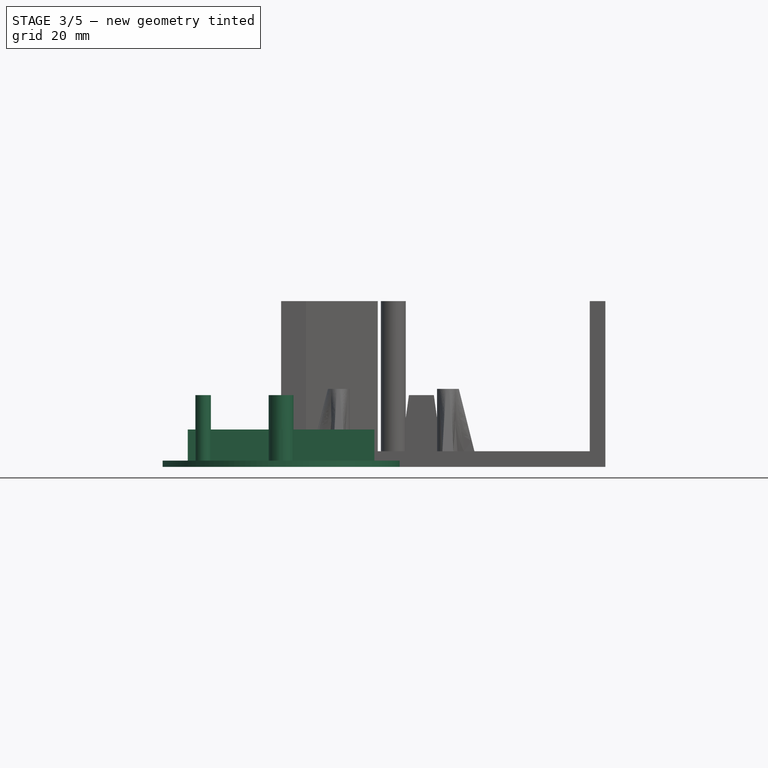
[diagram: stage 3 of 5 — front view after this stage's code; geometry added in this stage tinted green]
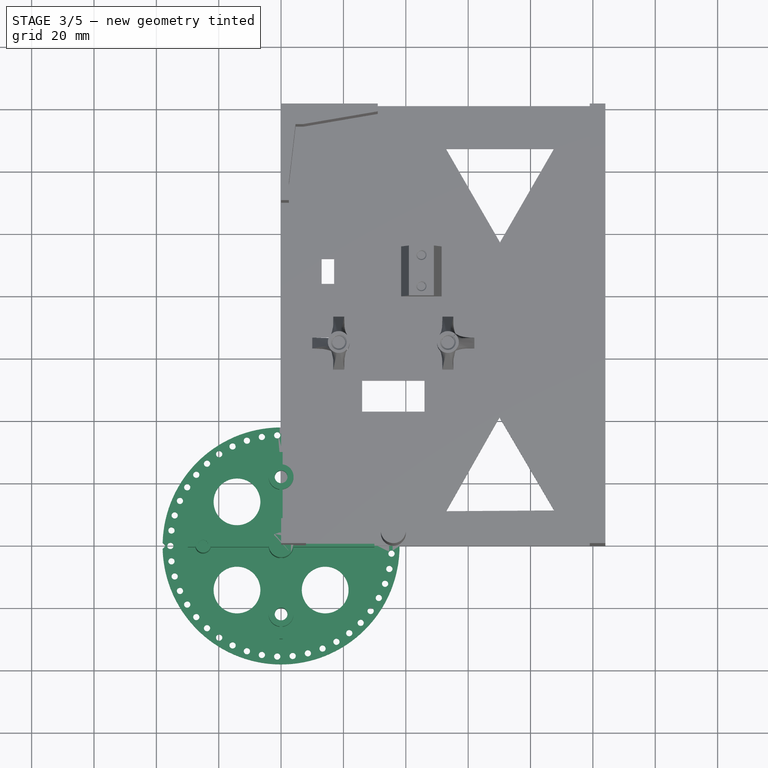
[diagram: stage 3 of 5 — top view after this stage's code; geometry added in this stage tinted green]
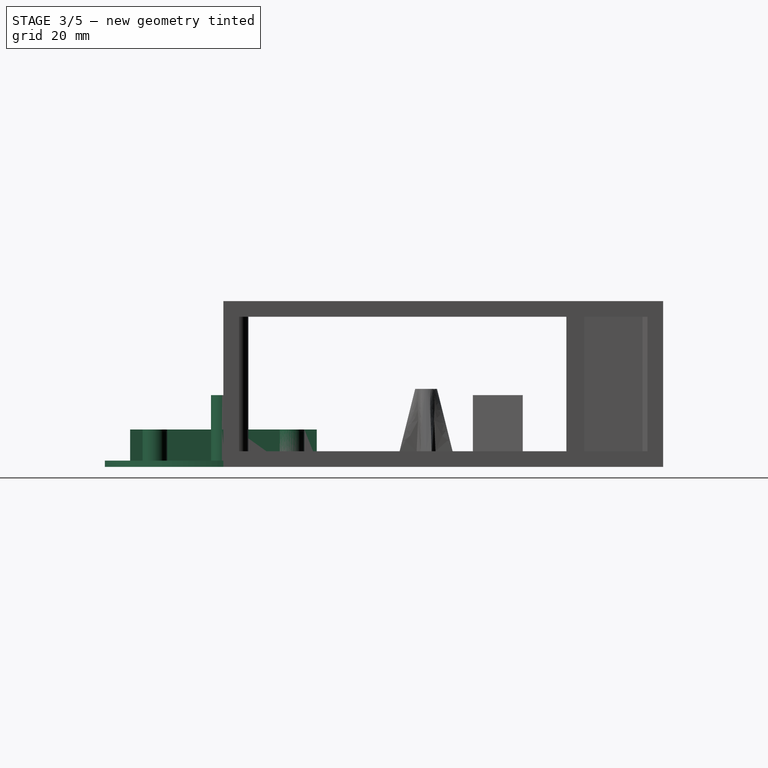
[diagram: stage 3 of 5 — right view after this stage's code; geometry added in this stage tinted green]
FEATURE [Sketcher::SketchObject] Sketch003
  ArcFitTolerance = 1e-06
  AttachmentSupport = -> [XY_Plane]
  FullyConstrained = true
  MakeInternals = false
  MapMode = 5
  expr: Constraints[1] = <<params>>.plate_diameter
  sketch-geometry (1):
    g0: Circle CenterX=0 CenterY=0 CenterZ=0 NormalX=0 NormalY=0 NormalZ=1 AngleXU=0 Radius=38
  constraints (2):
    c: Coincident(g0,g-1)
    c: Diameter(g0) = 76
FEATURE [PartDesign::Pad] Pad002  label="Pad002 (plate)"
  Direction = (0,0,1)
  Length = 2
  Length2 = 10
  Profile = -> Sketch003
  ReferenceAxis = -> Sketch003 [N_Axis]
  Refine = true
  Suppressed = false
  Type = 0
  expr: Length = <<params>>.plate_strength
FEATURE [Sketcher::SketchObject] Sketch004
  ArcFitTolerance = 1e-06
  AttachmentSupport = -> [Pad002]
  FullyConstrained = true
  MakeInternals = false
  MapMode = 5
  Placement = pos=(0,0,2) rot=(0,0,1;0rad)
  expr: Constraints[1] = <<params>>.motor_attach_diameter
  expr: Constraints[3] = <<params>>.magnet_attach_diameter
  expr: Constraints[4] = <<params>>.magnet_attach_distance_to_center
  sketch-geometry (2):
    g0: Circle CenterX=5e-16 CenterY=0 CenterZ=0 NormalX=0 NormalY=0 NormalZ=1 AngleXU=0 Radius=4
    g1: Circle CenterX=-25 CenterY=0 CenterZ=0 NormalX=0 NormalY=0 NormalZ=1 AngleXU=0 Radius=2.5
  constraints (5):
    c: Coincident(g0,g-1)
    c: Diameter(g0) = 8
    c: PointOnObject(g1,g-1)
    c: Diameter(g1) = 5
    c: DistanceX(g1,g-1) = 25
FEATURE [PartDesign::Pad] Pad003  label="Pad003 (magnet and motor column)"
  BaseFeature = -> Pad002
  Direction = (0,0,1)
  Length = 21
  Length2 = 10
  Profile = -> Sketch004
  ReferenceAxis = -> Sketch004 [N_Axis]
  Refine = true
  Suppressed = false
  Type = 0
  expr: Length = <<params>>.magnet_attach_height
FEATURE [Sketcher::SketchObject] Sketch005
  ArcFitTolerance = 1e-06
  AttachmentSupport = -> [Pad003]
  FullyConstrained = true
  MakeInternals = false
  MapMode = 5
  Placement = pos=(0,0,2) rot=(0,0,1;0rad)
  expr: Constraints[10] = <<params>>.mount_length
  expr: Constraints[11] = <<params>>.mount_strength
  expr: Constraints[22] = <<params>>.mount_length
  expr: Constraints[23] = <<params>>.mount_strength
  sketch-geometry (10):
    g0: LineSegment StartX=-29.925 StartY=0.5 StartZ=0 EndX=-29.925 EndY=-0.5 EndZ=0
    g1: LineSegment StartX=-29.925 StartY=-0.5 StartZ=0 EndX=29.925 EndY=-0.5 EndZ=0
    g2: LineSegment StartX=29.925 StartY=-0.5 StartZ=0 EndX=29.925 EndY=0.5 EndZ=0
    g3: LineSegment StartX=29.925 StartY=0.5 StartZ=0 EndX=-29.925 EndY=0.5 EndZ=0
    g4: GeomPoint [constr] X=-1e-16 Y=0 Z=0
    g5: LineSegment StartX=0.5 StartY=-29.925 StartZ=0 EndX=0.5 EndY=29.925 EndZ=0
    g6: LineSegment StartX=0.5 StartY=29.925 StartZ=0 EndX=-0.5 EndY=29.925 EndZ=0
    g7: LineSegment StartX=-0.5 StartY=29.925 StartZ=0 EndX=-0.5 EndY=-29.925 EndZ=0
    g8: LineSegment StartX=-0.5 StartY=-29.925 StartZ=0 EndX=0.5 EndY=-29.925 EndZ=0
    g9: GeomPoint [constr] X=-1e-16 Y=0 Z=0
  constraints (24):
    c: Coincident(g0,g1)
    c: Coincident(g1,g2)
    c: Coincident(g2,g3)
    c: Coincident(g3,g0)
    c: Vertical(g0)
    c: Vertical(g2)
    c: Horizontal(g1)
    c: Horizontal(g3)
    c: Symmetric(g2,g0,g4)
    c: Coincident(g4,g-1)
    c: DistanceX(g1,g1) = 59.85
    c: DistanceY(g2,g2) = 1
    c: Coincident(g5,g6)
    c: Coincident(g6,g7)
    c: Coincident(g7,g8)
    c: Coincident(g8,g5)
    c: Vertical(g5)
    c: Vertical(g7)
    c: Horizontal(g6)
    c: Horizontal(g8)
    c: Symmetric(g7,g5,g9)
    c: Coincident(g9,g4)
    c: DistanceY(g5,g5) = 59.85
    c: DistanceX(g6,g6) = 1
FEATURE [PartDesign::Pad] Pad004  label="Pad004 (mounts)"
  BaseFeature = -> Pad003
  Direction = (0,0,1)
  Length = 10
  Length2 = 10
  Profile = -> Sketch005
  ReferenceAxis = -> Sketch005 [N_Axis]
  Refine = true
  Suppressed = false
  Type = 0
  expr: Length = <<params>>.mount_height
FEATURE [Sketcher::SketchObject] Sketch007
  ArcFitTolerance = 1e-06
  FullyConstrained = true
  MakeInternals = false
  MapMode = 5
  Placement = pos=(0,0,23) rot=(0,0,1;0rad)
  expr: Constraints[0] = <<params>>.magnet_diameter
  sketch-geometry (1):
    g0: Circle CenterX=-25 CenterY=0 CenterZ=0 NormalX=0 NormalY=0 NormalZ=1 AngleXU=0 Radius=1.575
  constraints (2):
    c: Diameter(g0) = 3.15
    c: Coincident(g0,g-3)
FEATURE [PartDesign::Pocket] Pocket002  label="Pocket002 (magnet hole)"
  BaseFeature = -> Pad004
  Direction = (0,0,-1)
  Length = 2.3
  Length2 = 5
  Profile = -> Sketch007
  ReferenceAxis = -> Sketch007 [N_Axis]
  Refine = true
  Suppressed = false
  Type = 0
  expr: Length = <<params>>.magnet_depth
FEATURE [Sketcher::SketchObject] Sketch008
  ArcFitTolerance = 1e-06
  FullyConstrained = true
  MakeInternals = false
  MapMode = 5
  Placement = pos=(0,0,2) rot=(0,0,1;0rad)
  expr: Constraints[0] = <<params>>.plate_material_hole_diameter
  expr: Constraints[1] = <<params>>.plate_material_hole_distance
  sketch-geometry (2):
    g0: Circle CenterX=14.1421 CenterY=14.1421 CenterZ=0 NormalX=0 NormalY=0 NormalZ=1 AngleXU=0 Radius=7.5
    g1: LineSegment [constr] StartX=0 StartY=0 StartZ=0 EndX=14.1421 EndY=14.1421 EndZ=0
  constraints (5):
    c: Diameter(g0) = 15
    c: Distance(g0,g-1) = 20
    c: Coincident(g1,g-1)
    c: Coincident(g1,g0)
    c: Angle(g-1,g1) = 0.785398
FEATURE [PartDesign::Pocket] Pocket003  label="Pocket003 (material hole)"
  BaseFeature = -> Pocket002
  Direction = (0,0,-1)
  Length = 5
  Length2 = 5
  Profile = -> Sketch008
  ReferenceAxis = -> Sketch008 [N_Axis]
  Refine = true
  Suppressed = false
  Type = 0
FEATURE [PartDesign::PolarPattern] PolarPattern
  Angle = 360
  Axis = -> Sketch008 [N_Axis]
  BaseFeature = -> Pocket003
  Mode = 0
  Occurrences = 4
  Offset = 120
  Originals = -> [Pocket003]
  Refine = true
  Suppressed = false
  TransformMode = 0
FEATURE [Sketcher::SketchObject] Sketch009
  ArcFitTolerance = 1e-06
  AttachmentSupport = -> [PolarPattern]
  FullyConstrained = true
  MakeInternals = false
  MapMode = 5
  Placement = pos=(0,0,2) rot=(0,0,1;0rad)
  expr: Constraints[0] = <<params>>.plate_flap_hole_diameter
  expr: Constraints[1] = <<params>>.plate_flap_hole_center_distance
  sketch-geometry (1):
    g0: Circle CenterX=-35.5 CenterY=0 CenterZ=0 NormalX=0 NormalY=0 NormalZ=1 AngleXU=0 Radius=1
  constraints (3):
    c: Diameter(g0) = 2
    c: Distance(g0,g-1) = 35.5
    c: PointOnObject(g0,g-1)
FEATURE [PartDesign::Pocket] Pocket004  label="Pocket004 (flap hole)"
  BaseFeature = -> PolarPattern
  Direction = (0,0,-1)
  Length = 5
  Length2 = 5
  Profile = -> Sketch009
  ReferenceAxis = -> Sketch009 [N_Axis]
  Refine = true
  Suppressed = false
  Type = 1
FEATURE [PartDesign::PolarPattern] PolarPattern001
  Angle = 360
  Axis = -> Sketch009 [N_Axis]
  BaseFeature = -> Pocket004
  Mode = 0
  Occurrences = 45
  Offset = 120
  Originals = -> [Pocket004]
  Refine = true
  Suppressed = false
  TransformMode = 0
  expr: Occurrences = <<params>>.num_chars
FEATURE [Sketcher::SketchObject] Sketch014
  ArcFitTolerance = 1e-06
  AttachmentSupport = -> [PolarPattern001]
  FullyConstrained = true
  MakeInternals = false
  MapMode = 5
  Placement = pos=(0,0,2) rot=(0,0,1;0rad)
  expr: Constraints[12] = <<params>>.plate_diameter / 2
  expr: Constraints[5] = <<params>>.plate_dent_side
  expr: Constraints[6] = <<params>>.plate_dent_side
  sketch-geometry (5):
    g0: LineSegment StartX=-38 StartY=1 StartZ=0 EndX=-39 EndY=2.2185e-12 EndZ=0
    g1: LineSegment StartX=-39 StartY=2.2185e-12 StartZ=0 EndX=-38 EndY=-1 EndZ=0
    g2: LineSegment StartX=-38 StartY=-1 StartZ=0 EndX=-37 EndY=7.47e-14 EndZ=0
    g3: LineSegment StartX=-37 StartY=7.47e-14 StartZ=0 EndX=-38 EndY=1 EndZ=0
    g4: GeomPoint [constr] X=-38 Y=0 Z=0
  constraints (13):
    c: Coincident(g0,g1)
    c: Coincident(g1,g2)
    c: Coincident(g2,g3)
    c: Coincident(g3,g0)
    c: Symmetric(g2,g0,g4)
    c: DistanceX(g3,g3) = 1
    c: DistanceY(g2,g2) = 1
    c: Angle(g0,g3) = 1.5708
    c: Angle(g1,g0) = 1.5708
    c: Angle(g2,g1) = 1.5708
    c: Angle(g-1,g2) = 0.785398
    c: PointOnObject(g4,g-1)
    c: DistanceX(g4,g-1) = 38
FEATURE [PartDesign::Pocket] Pocket007  label="Pocket007 (dent)"
  BaseFeature = -> PolarPattern001
  Direction = (0,0,-1)
  Length = 5
  Length2 = 5
  Profile = -> Sketch014
  ReferenceAxis = -> Sketch014 [N_Axis]
  Refine = true
  Suppressed = false
  Type = 0
FEATURE [Sketcher::SketchObject] Sketch018
  ArcFitTolerance = 1e-06
  AttachmentSupport = -> [Pad002]
  FullyConstrained = true
  MakeInternals = false
  MapMode = 45
  Placement = pos=(-7.1e-15,2.7e-15,2) rot=(0,0,1;0rad)
  expr: Constraints[0] = <<params>>.plate_inner_connect_diameter
  expr: Constraints[1] = <<params>>.plate_inner_connect_center_distance
  expr: Constraints[4] = <<params>>.plate_inner_connect_angle
  expr: Constraints[5] = <<params>>.plate_inner_connect_diameter
  expr: Constraints[6] = <<params>>.plate_inner_connect_center_distance
  expr: Constraints[9] = 180 + <<params>>.plate_inner_connect_angle
  sketch-geometry (4):
    g0: Circle CenterX=1.3e-15 CenterY=22 CenterZ=0 NormalX=0 NormalY=0 NormalZ=1 AngleXU=0 Radius=4
    g1: LineSegment [constr] StartX=1.3e-15 StartY=22 StartZ=0 EndX=0 EndY=0 EndZ=0
    g2: Circle CenterX=-4e-15 CenterY=-22 CenterZ=0 NormalX=0 NormalY=0 NormalZ=1 AngleXU=0 Radius=4
    g3: LineSegment [constr] StartX=-4e-15 StartY=-22 StartZ=0 EndX=0 EndY=0 EndZ=0
  constraints (10):
    c: Diameter(g0) = 8
    c: Distance(g0,g-1) = 22
    c: Coincident(g1,g0)
    c: Coincident(g1,g-1)
    c: Angle(g-1,g1) = 1.5708
    c: Diameter(g2) = 8
    c: Distance(g2,g-1) = 22
    c: Coincident(g3,g2)
    c: Coincident(g3,g1)
    c: Angle(g-1,g3) = 4.71239
FEATURE [PartDesign::Pad] Pad007  label="Pad007 (outer mount columns)"
  BaseFeature = -> Pocket007
  Direction = (0,0,1)
  Length = 10
  Length2 = 10
  Profile = -> Sketch018
  ReferenceAxis = -> Sketch018 [N_Axis]
  Refine = true
  Suppressed = false
  Type = 0
  expr: Length = <<params>>.plate_inner_connect_height
FEATURE [Sketcher::SketchObject] Sketch019
  ArcFitTolerance = 1e-06
  AttachmentSupport = -> [Pad007]
  FullyConstrained = true
  MakeInternals = false
  MapMode = 5
  Placement = pos=(0,0,0) rot=(1,0,0;3.14159rad)
  expr: Constraints[0] = <<params>>.plate_inner_connect_screw_diameter
  expr: Constraints[1] = <<params>>.plate_inner_connect_center_distance
  expr: Constraints[4] = 180 - <<params>>.plate_inner_connect_angle
  expr: Constraints[5] = <<params>>.plate_inner_connect_screw_diameter
  expr: Constraints[6] = <<params>>.plate_inner_connect_center_distance
  expr: Constraints[9] = <<params>>.plate_inner_connect_angle
  sketch-geometry (4):
    g0: Circle CenterX=1.3e-15 CenterY=22 CenterZ=0 NormalX=0 NormalY=0 NormalZ=1 AngleXU=0 Radius=2.05
    g1: LineSegment [constr] StartX=1.3e-15 StartY=22 StartZ=0 EndX=0 EndY=0 EndZ=0
    g2: Circle CenterX=3.5e-15 CenterY=-22 CenterZ=0 NormalX=0 NormalY=0 NormalZ=1 AngleXU=0 Radius=2.05
    g3: LineSegment [constr] StartX=3.5e-15 StartY=-22 StartZ=0 EndX=0 EndY=0 EndZ=0
  constraints (10):
    c: Diameter(g0) = 4.1
    c: Distance(g0,g-1) = 22
    c: Coincident(g1,g0)
    c: Coincident(g1,g-1)
    c: Angle(g-1,g1) = 1.5708
    c: Diameter(g2) = 4.1
    c: Distance(g2,g-1) = 22
    c: Coincident(g3,g2)
    c: Coincident(g3,g1)
    c: Angle(g3,g-1) = 1.5708
FEATURE [PartDesign::Pocket] Pocket010  label="Pocket010 (outer mount screw holes)"
  BaseFeature = -> Pad007
  Direction = (0,0,1)
  Length = 5
  Length2 = 5
  Profile = -> Sketch019
  ReferenceAxis = -> Sketch019 [N_Axis]
  Refine = true
  Suppressed = false
  Type = 1
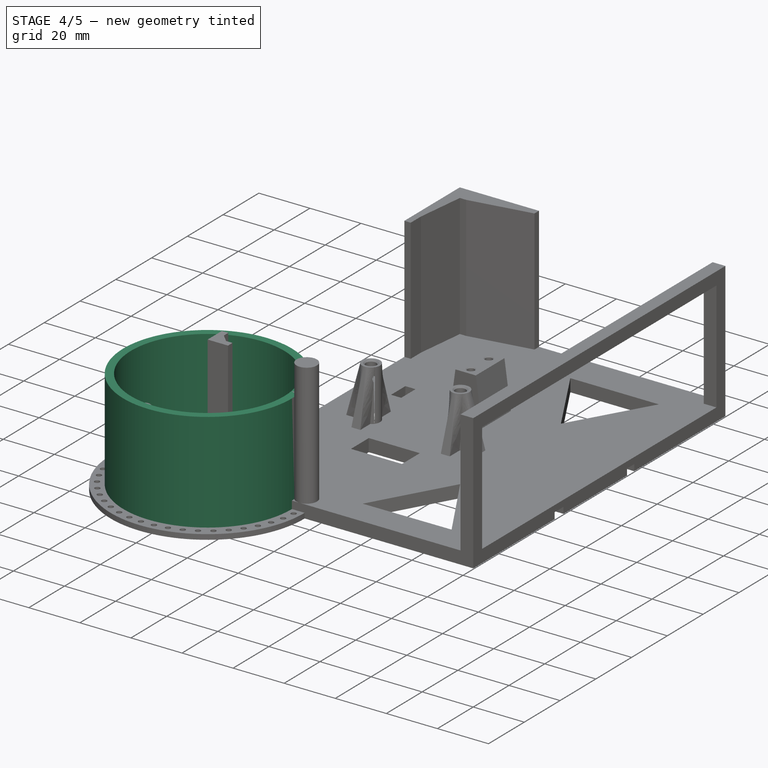
[diagram: stage 4 of 5 — iso view after this stage's code; geometry added in this stage tinted green]
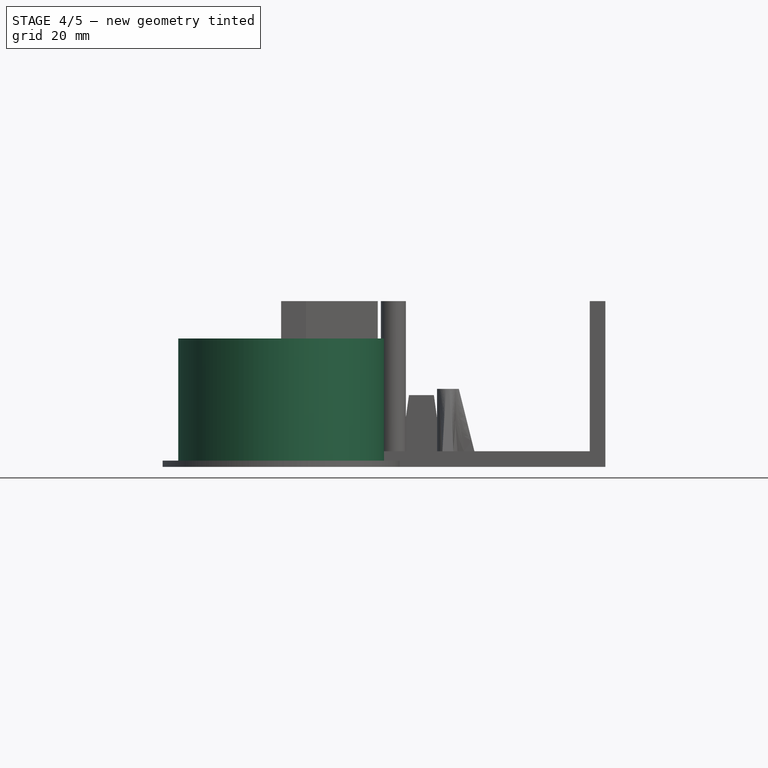
[diagram: stage 4 of 5 — front view after this stage's code; geometry added in this stage tinted green]
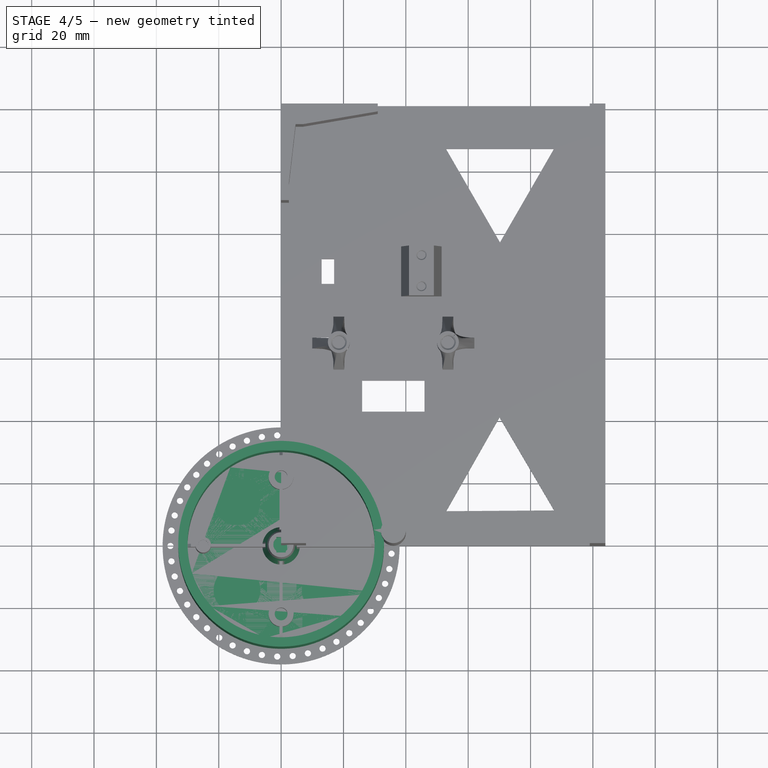
[diagram: stage 4 of 5 — top view after this stage's code; geometry added in this stage tinted green]
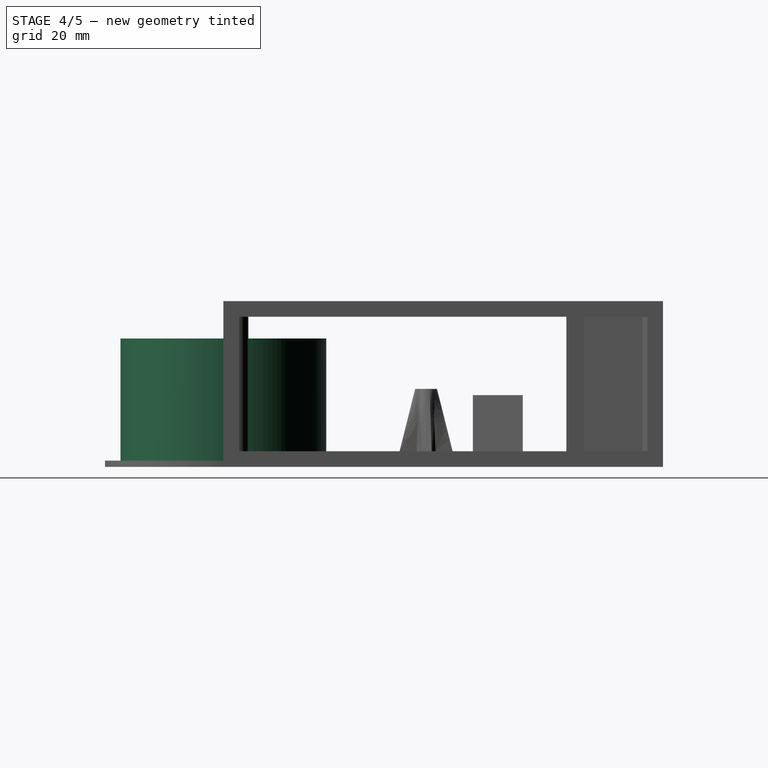
[diagram: stage 4 of 5 — right view after this stage's code; geometry added in this stage tinted green]
FEATURE [Spreadsheet::Sheet] Spreadsheet  label="params"
  cells = A1='tolerance_1; B1(tolerance_1)==0.2 mm; D1='screw_head_diameter; E1(screw_head_diameter)==5.5 mm; G1='frame_height; H1(frame_height)==141 mm; A2='tolerance_2; B2(tolerance_2)==0.15 mm; D2='screw_head_height; E2(screw_head_height)==3.2 mm; G2='frame_side_width; H2(frame_side_width)==104 mm; A3='num_chars; B3(num_chars)=45; G3='frame_thick; H3(frame_thick)==5 mm; D4='std_screw_diameter; E4(std_screw_diameter)==4.1 mm; J4='frame_front_height; K4==frame_height; A5='drum_diameter_inner; B5(drum_diameter_inner)==60 mm; D5='std_screw_depth; E5(std_screw_depth)==5.5 mm; G5='frame_left_cable_hole_center_pos_x; H5(frame_left_cable_hole_center_pos_x)==motor_axle_x; J5='frame_front_width; K5(frame_front_width)==drum_length + 2 * plate_strength + 2 * frame_thick; A6='drum_diameter_inner_minus_rail_strength; B6(drum_diameter_inner_minus_rail_strength)==drum_diameter_inner - mount_rail_strength; D6='std_screw_chamfer; E6(std_screw_chamfer)==0.5 mm; G6='frame_left_cable_hole_center_pos_y; H6(frame_left_cable_hole_center_pos_y)==motor_axle_y - 8 mm - 17 mm; J6='frame_front_thick; K6==frame_thick; A7='drum_strength; B7(drum_strength)==3 mm; D7='std_screw_senkkopf_chamfer; E7(std_screw_senkkopf_chamfer)==1.8 mm; G7='frame_left_cable_hole_height; H7(frame_left_cable_hole_height)==10 mm; J7='frame_front_window_left_dist; K7(frame_front_window_left_dist)==frame_thick; A8='drum_diameter_outer; B8(drum_diameter_outer)==drum_diameter_inner + 2 * drum_strength; G8='frame_left_cable_hole_width; H8(frame_left_cable_hole_width)==20 mm; J8='frame_front_window_right_dist; K8(frame_front_window_right_dist)==frame_thick; A9='drum_length; B9(drum_length)==39 mm + tolerance_2; D9='flap_width_half; E9(flap_width_half)==19.5 mm + flap_notch_width; J9='frame_front_window_top_dist; K9(frame_front_window_top_dist)==frame_height - motor_axle_y - flap_height - 2 mm; D10='flap_width; E10(flap_width)==flap_width_half * 2; G10='flap_sound_bar_pos_x; H10(flap_sound_bar_pos_x)==motor_axle_x; J10='frame_front_window_bottom_dist; K10(frame_front_window_bottom_dist)==12 mm; A11='plate_overlap; B11(plate_overlap)==5 mm; D11='flap_height; E11(flap_height)==35 mm; G11='flap_sound_bar_pos_y; H11(flap_sound_bar_pos_y)==flap_sound_bar_diameter / 2; J11='frame_front_mount_side; K11(frame_front_mount_side)==8 mm; A12='plate_diameter; B12(plate_diameter)==drum_diameter_outer + 2 * plate_overlap; D12='flap_depth; E12(flap_depth)==1 mm; G12='flap_sound_bar_diameter; H12(flap_sound_bar_diameter)==8 mm; A13='plate_strength; B13(plate_strength)==2 mm; D13='flap_notch_height; E13(flap_notch_height)==15.6 mm; G13='flap_sound_bar_length; H13(flap_sound_bar_length)==plate_strength + drum_length + plate_strength + frame_thick; A14='plate_material_hole_diameter; B14(plate_material_hole_diameter)==15 mm; D14='flap_notch_width; E14(flap_notch_width)==2 mm; A15='plate_material_hole_distance; B15(plate_material_hole_distance)==drum_diameter_inner / 3; D15='flap_pin_height; E15(flap_pin_height)==1.2 mm; A16='plate_flap_hole_diameter; B16(plate_flap_hole_diameter)==2 mm; D16='flap_dent_height; E16(flap_dent_height)==1.2 mm; G16='motor_axle_x; H16(motor_axle_x)==36 mm; J16='hall_mount_size_x; K16(hall_mount_size_x)==8 mm; A17='plate_flap_hole_distance_border; B17(plate_flap_hole_distance_border)==1.5 mm; D17='flap_rounded_edges; E17(flap_rounded_edges)==0.5 mm; G17='motor_axle_y; H17(motor_axle_y)==73 mm; J17='hall_mount_size_y; K17(hall_mount_size_y)==16 mm; A18='plate_flap_hole_center_distance; B18(plate_flap_hole_center_distance)==plate_diameter / 2 - plate_flap_hole_distance_border - plate_flap_hole_diameter / 2; G18='motor_mount_1_pos_x; H18(motor_mount_1_pos_x)==motor_axle_x - 17.5 mm; J18='hall_mount_height; K18(hall_mount_height)==18 mm; A19='plate_dent_side; B19(plate_dent_side)==1 mm; D19='max_character_width; E19==flap_width - flap_notch_width * 2; G19='motor_mount_1_pos_y; H19(motor_mount_1_pos_y)==motor_axle_y - 8 mm; J19='hall_mount_pos_x; K19(hall_mount_pos_x)==motor_axle_x + 9 mm; A20='plate_inner_screw_diameter; B20(plate_inner_screw_diameter)==4.1 mm; D20='max_character_height; E20==flap_height * 2; G20='motor_mount_2_pos_x; H20(motor_mount_2_pos_x)==motor_axle_x + 17.5 mm; J20='hall_mount_pos_y; K20(hall_mount_pos_y)==motor_axle_y + 7 mm + hall_mount_size_y / 2; A21='plate_inner_screw_depth; B21(plate_inner_screw_depth)==5.5 mm; G21='motor_mount_2_pos_y; H21(motor_mount_2_pos_y)==motor_axle_y - 8 mm; J21='hall_screw_diameter; K21(hall_screw_diameter)==2.7 mm; A22='plate_inner_screw_chamfer; B22(plate_inner_screw_chamfer)==0.5 mm; G22='motor_mount_diameter; H22(motor_mount_diameter)==7 mm; J22='hall_screw_dist; K22(hall_screw_dist)==10 mm; A23='plate_inner_connect_height; B23(plate_inner_connect_height)==10 mm; D23='plate_outer_connect_height; E23(plate_outer_connect_height)==7 mm; G23='motor_mount_height; H23(motor_mount_height)==20 mm; J23='hall_screw_depth; K23(hall_screw_depth)==3.9 mm; A24='plate_inner_connect_diameter; B24(plate_inner_connect_diameter)==8 mm; D24='plate_outer_connect_diameter; E24(plate_outer_connect_diameter)==plate_inner_connect_diameter; J24='hall_screw_chamfer; K24(hall_screw_chamfer)==0.3 mm; A25='plate_inner_connect_center_distance; B25(plate_inner_connect_center_distance)==drum_diameter_inner / 2 - plate_inner_connect_diameter; D25='plate_outer_connect_center_distance; E25(plate_outer_connect_center_distance)==plate_inner_connect_center_distance; A26='plate_inner_connect_angle; B26(plate_inner_connect_angle)=90; D26='plate_outer_connect_angle; E26(plate_outer_connect_angle)==plate_inner_connect_angle; A27='plate_inner_connect_screw_diameter; B27(plate_inner_connect_screw_diameter)==4.1 mm; D27='plate_outer_connect_side_short; E27(plate_outer_connect_side_short)==plate_outer_connect_diameter + 2 mm; A28='plate_inner_connect_screw_depth; B28==5.5 mm; D28='plate_outer_connect_side_long; E28(plate_outer_connect_side_long)==15 mm; A29='plate_inner_connect_screw_chamfer; B29(plate_inner_connect_screw_chamfer)==0.5 mm; D29='plate_outer_connect_square_center_distance; E29(plate_outer_connect_square_center_distance)==23.5 mm; A31='mount_length; B31(mount_length)==drum_diameter_inner - tolerance_2; A32='mount_strength; B32(mount_strength)==1 mm; A33='mount_height; B33(mount_height)==10 mm; A34='mount_rail_strength; B34(mount_rail_strength)==2 mm; A35='mount_rail_base_height; B35(mount_rail_base_height)==2 mm; A36='mount_rail_size; B36(mount_rail_size)==1.2 mm; A37='mount_rail_sides_strength; B37(mount_rail_sides_strength)==2 mm; A38='mount_rail_height; B38(mount_rail_height)==drum_length + plate_strength - mount_rail_base_height - 5 mm; A40='motor_attach_height; B40(motor_attach_height)==21 mm; A41='motor_attach_height_over_mount; B41(motor_attach_height_over_mount)==motor_attach_height - mount_height; A42='motor_attach_diameter; B42(motor_attach_diameter)==motor_nozzle_diameter_long + 3 mm; A43='motor_nozzle_diameter_short; B43(motor_nozzle_diameter_short)==3 mm; A44='motor_nozzle_diameter_long; B44(motor_nozzle_diameter_long)==5 mm; +16 more cells
FEATURE [Sketcher::SketchObject] Sketch
  ArcFitTolerance = 1e-06
  AttachmentSupport = -> [XY_Plane001]
  FullyConstrained = true
  MakeInternals = false
  MapMode = 5
  expr: Constraints[1] = <<params>>.plate_diameter
  sketch-geometry (1):
    g0: Circle CenterX=0 CenterY=0 CenterZ=0 NormalX=0 NormalY=0 NormalZ=1 AngleXU=0 Radius=38
  constraints (2):
    c: Coincident(g0,g-1)
    c: Diameter(g0) = 76
FEATURE [PartDesign::Pad] Pad
  Direction = (0,0,1)
  Length = 2
  Length2 = 10
  Profile = -> Sketch
  ReferenceAxis = -> Sketch [N_Axis]
  Refine = true
  Suppressed = false
  Type = 0
  expr: Length = <<params>>.plate_strength
FEATURE [Sketcher::SketchObject] Sketch001
  ArcFitTolerance = 1e-06
  AttachmentSupport = -> [Pad]
  FullyConstrained = true
  MakeInternals = false
  MapMode = 5
  Placement = pos=(0,0,2) rot=(0,0,1;0rad)
  expr: Constraints[1] = <<params>>.drum_diameter_outer
  sketch-geometry (1):
    g0: Circle CenterX=0 CenterY=0 CenterZ=0 NormalX=0 NormalY=0 NormalZ=1 AngleXU=0 Radius=33
  constraints (2):
    c: Coincident(g0,g-1)
    c: Diameter(g0) = 66
FEATURE [PartDesign::Pad] Pad001
  BaseFeature = -> Pad
  Direction = (0,0,1)
  Length = 39.15
  Length2 = 10
  Profile = -> Sketch001
  ReferenceAxis = -> Sketch001 [N_Axis]
  Refine = true
  Suppressed = false
  Type = 0
  expr: Length = <<params>>.drum_length
FEATURE [Sketcher::SketchObject] Sketch002
  ArcFitTolerance = 1e-06
  AttachmentSupport = -> [Pad001]
  FullyConstrained = true
  MakeInternals = false
  MapMode = 5
  Placement = pos=(0,0,41.15) rot=(0,0,1;0rad)
  expr: Constraints[1] = <<params>>.drum_diameter_inner
  sketch-geometry (1):
    g0: Circle CenterX=0 CenterY=0 CenterZ=0 NormalX=0 NormalY=0 NormalZ=1 AngleXU=0 Radius=30
  constraints (2):
    c: Coincident(g0,g-1)
    c: Diameter(g0) = 60
FEATURE [PartDesign::Pocket] Pocket
  BaseFeature = -> Pad001
  Direction = (0,0,-1)
  Length = 5
  Length2 = 5
  Profile = -> Sketch002
  ReferenceAxis = -> Sketch002 [N_Axis]
  Refine = true
  Suppressed = false
  Type = 1
FEATURE [Sketcher::SketchObject] Sketch010
  ArcFitTolerance = 1e-06
  AttachmentSupport = -> [Pocket]
  FullyConstrained = true
  MakeInternals = false
  MapMode = 5
  Placement = pos=(0,0,2) rot=(0,0,1;0rad)
  expr: Constraints[0] = <<params>>.plate_flap_hole_diameter
  expr: Constraints[1] = <<params>>.plate_flap_hole_center_distance
  sketch-geometry (1):
    g0: Circle CenterX=-35.5 CenterY=0 CenterZ=0 NormalX=0 NormalY=0 NormalZ=1 AngleXU=0 Radius=1
  constraints (3):
    c: Diameter(g0) = 2
    c: Distance(g0,g-1) = 35.5
    c: PointOnObject(g0,g-1)
FEATURE [PartDesign::Pocket] Pocket005
  BaseFeature = -> Pocket
  Direction = (0,0,-1)
  Length = 5
  Length2 = 5
  Profile = -> Sketch010
  ReferenceAxis = -> Sketch010 [N_Axis]
  Refine = true
  Suppressed = false
  Type = 0
FEATURE [PartDesign::PolarPattern] PolarPattern002
  Angle = 360
  Axis = -> Sketch010 [N_Axis]
  BaseFeature = -> Pocket005
  Mode = 0
  Occurrences = 45
  Offset = 120
  Originals = -> [Pocket005]
  Refine = true
  Suppressed = false
  TransformMode = 0
  expr: Occurrences = <<params>>.num_chars
FEATURE [Sketcher::SketchObject] Sketch011
  ArcFitTolerance = 1e-06
  AttachmentSupport = -> [PolarPattern002]
  FullyConstrained = true
  MakeInternals = false
  MapMode = 5
  Placement = pos=(0,0,0) rot=(1,0,0;3.14159rad)
  expr: Constraints[1] = <<params>>.drum_diameter_inner
  sketch-geometry (1):
    g0: Circle CenterX=0 CenterY=0 CenterZ=0 NormalX=0 NormalY=0 NormalZ=1 AngleXU=0 Radius=30
  constraints (2):
    c: Coincident(g0,g-1)
    c: Diameter(g0) = 60
FEATURE [PartDesign::Pad] Pad005
  BaseFeature = -> PolarPattern002
  Direction = (0,0,-1)
  Length = 2
  Length2 = 10
  Profile = -> Sketch011
  ReferenceAxis = -> Sketch011 [N_Axis]
  Refine = true
  Reversed = true
  Suppressed = false
  Type = 0
  expr: Length = <<params>>.mount_rail_base_height
FEATURE [PartDesign::Body] Body001  label="Drum Outer"
  AllowCompound = false
  Group = -> [Sketch,Pad,Sketch001,Pad001,Sketch002,Pocket,Sketch010,Pocket005,PolarPattern002,Sketch011,Pad005,Sketch012,Pocket006,Sketch013,Pad006,PolarPattern003,Sketch015,Pocket008,DatumPlane,Sketch022,Pad008,Sketch039,Pocket025,Chamfer014,Fillet008]
  Origin = -> Origin001
  Tip = -> Fillet008
FEATURE [Sketcher::SketchObject] Sketch047
  ArcFitTolerance = 1e-06
  FullyConstrained = true
  MakeInternals = false
  MapMode = 5
  Placement = pos=(0,0,2) rot=(0,0,1;0rad)
  expr: Constraints[1] = <<params>>.motor_attach_diameter + 4 mm
  sketch-geometry (1):
    g0: Circle CenterX=0 CenterY=0 CenterZ=0 NormalX=0 NormalY=0 NormalZ=1 AngleXU=0 Radius=6
  constraints (2):
    c: Coincident(g0,g-1)
    c: Diameter(g0) = 12
FEATURE [PartDesign::AdditiveLoft] AdditiveLoft
  BaseFeature = -> Pocket010
  Closed = false
  Profile = -> Sketch047
  Refine = true
  Ruled = false
  Sections = -> [Pocket010]
  Suppressed = false
FEATURE [Sketcher::SketchObject] Sketch048
  ArcFitTolerance = 1e-06
  AttachmentSupport = -> [AdditiveLoft]
  FullyConstrained = true
  MakeInternals = false
  MapMode = 5
  Placement = pos=(0,0,23) rot=(0,0,1;0rad)
  expr: Constraints[10] = <<params>>.motor_nozzle_diameter_long
  expr: Constraints[11] = <<params>>.motor_nozzle_diameter_short
  sketch-geometry (5):
    g0: LineSegment StartX=1.5 StartY=-2.5 StartZ=0 EndX=1.5 EndY=2.5 EndZ=0
    g1: LineSegment StartX=1.5 StartY=2.5 StartZ=0 EndX=-1.5 EndY=2.5 EndZ=0
    g2: LineSegment StartX=-1.5 StartY=2.5 StartZ=0 EndX=-1.5 EndY=-2.5 EndZ=0
    g3: LineSegment StartX=-1.5 StartY=-2.5 StartZ=0 EndX=1.5 EndY=-2.5 EndZ=0
    g4: GeomPoint [constr] X=0 Y=0 Z=0
  constraints (12):
    c: Coincident(g0,g1)
    c: Coincident(g1,g2)
    c: Coincident(g2,g3)
    c: Coincident(g3,g0)
    c: Vertical(g0)
    c: Vertical(g2)
    c: Horizontal(g1)
    c: Horizontal(g3)
    c: Symmetric(g2,g0,g4)
    c: Coincident(g4,g-1)
    c: DistanceY(g0,g0) = 5
    c: DistanceX(g1,g1) = 3
FEATURE [PartDesign::Pocket] Pocket031
  BaseFeature = -> AdditiveLoft
  Direction = (0,0,-1)
  Length = 8.5
  Length2 = 5
  Profile = -> Sketch048
  ReferenceAxis = -> Sketch048 [N_Axis]
  Refine = true
  Suppressed = false
  Type = 0
  expr: Length = <<params>>.motor_nozzle_depth
FEATURE [Sketcher::SketchObject] Sketch049
  ArcFitTolerance = 1e-06
  AttachmentSupport = -> [Pocket031]
  FullyConstrained = true
  MakeInternals = false
  MapMode = 5
  Placement = pos=(0,0,23) rot=(0,0,1;0rad)
  expr: Constraints[1] = <<params>>.motor_nozzle_circlepart_diameter
  sketch-geometry (1):
    g0: Circle CenterX=0 CenterY=0 CenterZ=0 NormalX=0 NormalY=0 NormalZ=1 AngleXU=0 Radius=2.5
  constraints (2):
    c: Coincident(g0,g-1)
    c: Diameter(g0) = 5
FEATURE [PartDesign::Pocket] Pocket032
  BaseFeature = -> Pocket031
  Direction = (0,0,-1)
  Length = 2.5
  Length2 = 5
  Profile = -> Sketch049
  ReferenceAxis = -> Sketch049 [N_Axis]
  Refine = true
  Suppressed = false
  Type = 0
  expr: Length = <<params>>.motor_nozzle_circlepart_depth
FEATURE [PartDesign::Chamfer] Chamfer
  Angle = 45
  Base = -> Pocket032 [Edge48,Edge21]
  BaseFeature = -> Pocket032
  ChamferType = 0
  FlipDirection = false
  Refine = true
  Size = 1.8
  Size2 = 1
  SupportTransform = false
  Suppressed = false
  UseAllEdges = false
  expr: Size = <<params>>.std_screw_senkkopf_chamfer
FEATURE [PartDesign::Chamfer] Chamfer016
  Angle = 45
  Base = -> Chamfer [Edge244,Edge220,Edge201,Edge254]
  BaseFeature = -> Chamfer
  ChamferType = 0
  FlipDirection = false
  Refine = true
  Size = 1
  Size2 = 1
  SupportTransform = false
  Suppressed = false
  UseAllEdges = false
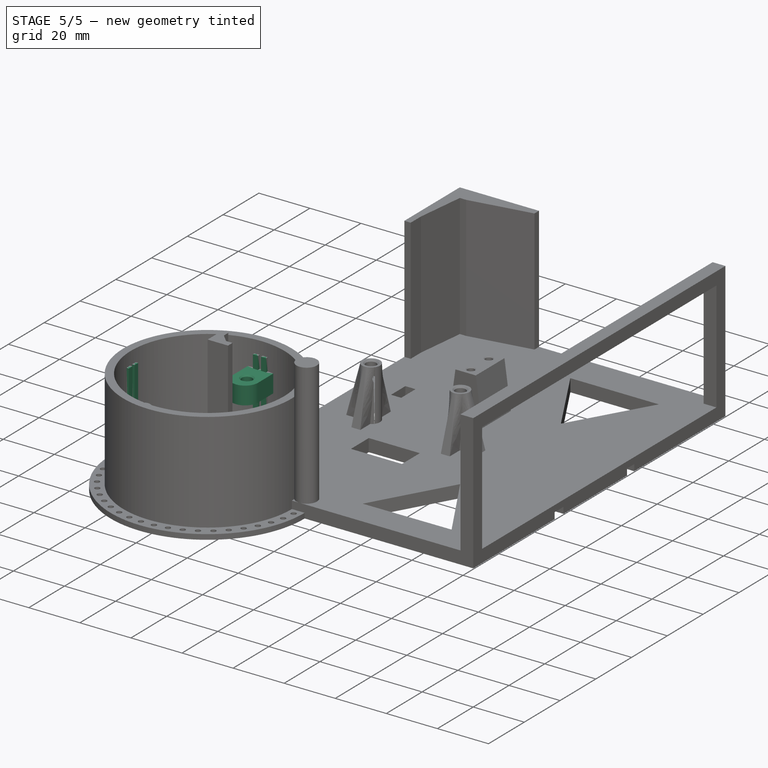
[diagram: stage 5 of 5 — iso view after this stage's code; geometry added in this stage tinted green]
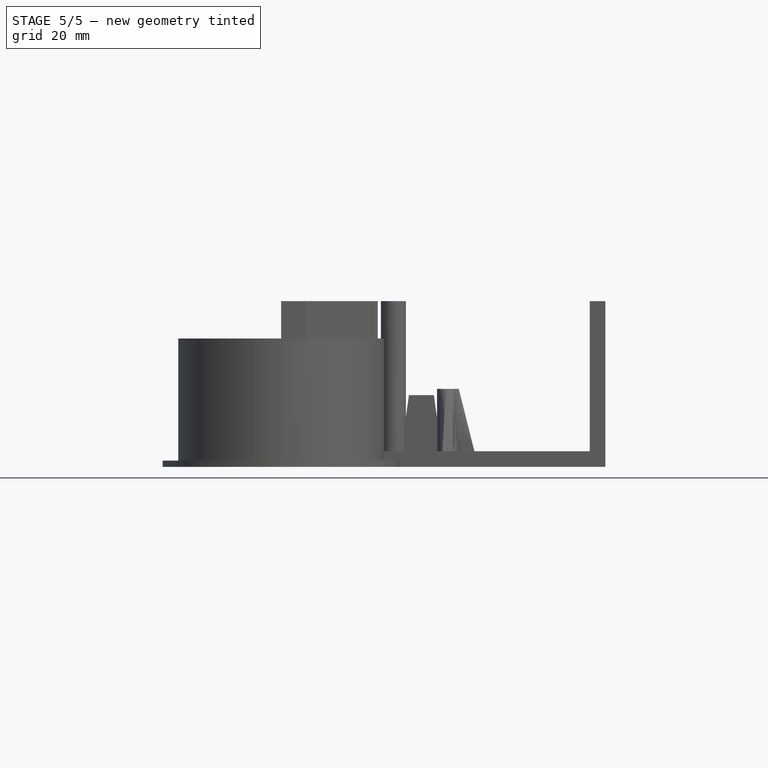
[diagram: stage 5 of 5 — front view after this stage's code; geometry added in this stage tinted green]
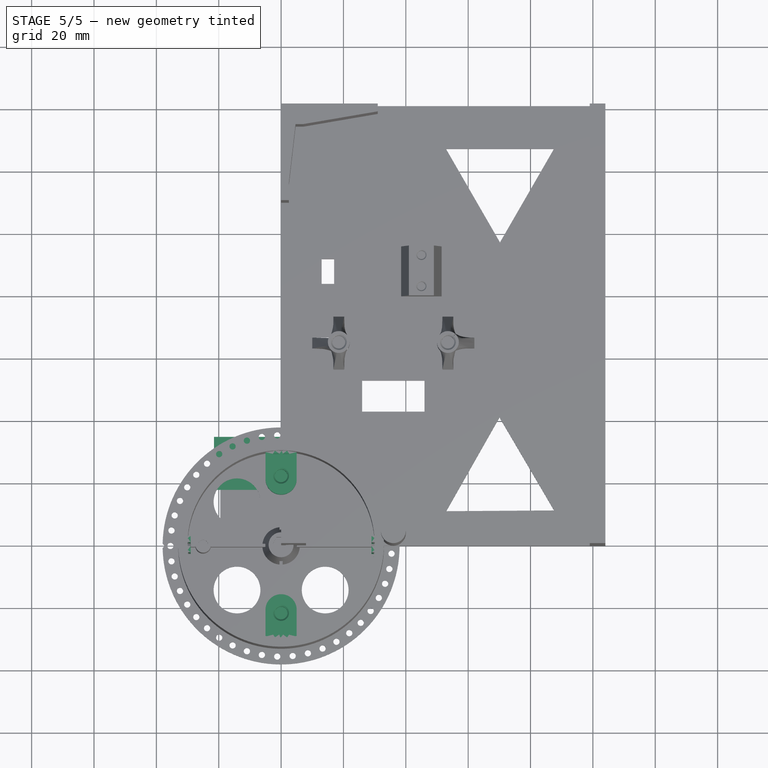
[diagram: stage 5 of 5 — top view after this stage's code; geometry added in this stage tinted green]
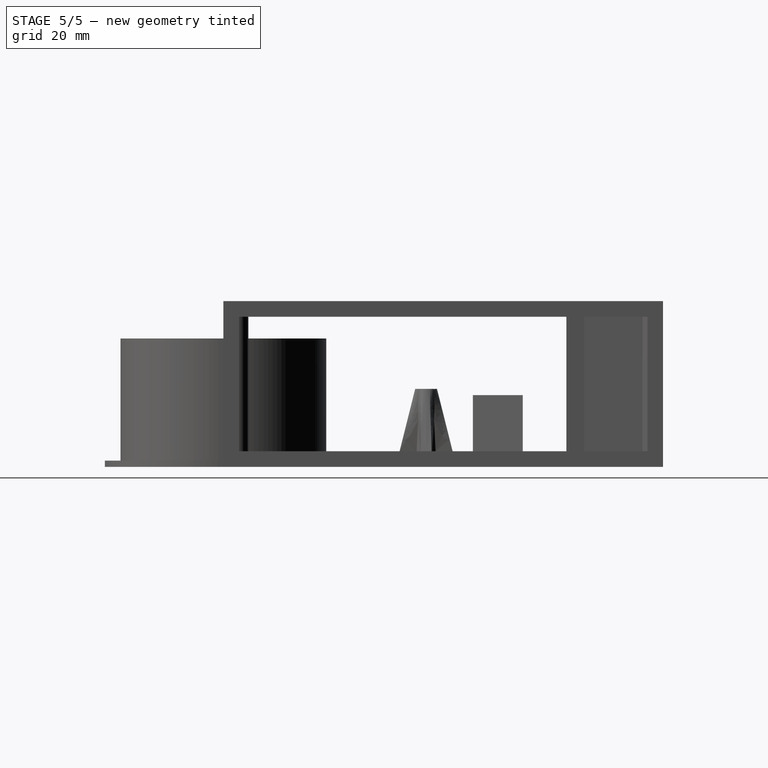
[diagram: stage 5 of 5 — right view after this stage's code; geometry added in this stage tinted green]
FEATURE [Sketcher::SketchObject] Sketch012
  ArcFitTolerance = 1e-06
  AttachmentSupport = -> [Pad005]
  FullyConstrained = true
  MakeInternals = false
  MapMode = 5
  Placement = pos=(0,0,2) rot=(0,0,1;0rad)
  expr: Constraints[1] = <<params>>.drum_diameter_inner_minus_rail_strength
  sketch-geometry (1):
    g0: Circle CenterX=0 CenterY=0 CenterZ=0 NormalX=0 NormalY=0 NormalZ=1 AngleXU=0 Radius=29
  constraints (2):
    c: Coincident(g0,g-1)
    c: Diameter(g0) = 58
FEATURE [PartDesign::Pocket] Pocket006
  BaseFeature = -> Pad005
  Direction = (0,0,-1)
  Length = 5
  Length2 = 5
  Profile = -> Sketch012
  ReferenceAxis = -> Sketch012 [N_Axis]
  Refine = true
  Suppressed = false
  Type = 1
FEATURE [Sketcher::SketchObject] Sketch013
  ArcFitTolerance = 1e-06
  AttachmentSupport = -> [Pocket006]
  ExternalGeometry = -> [Pocket006]
  FullyConstrained = true
  MakeInternals = false
  MapMode = 5
  Placement = pos=(0,0,2) rot=(0,0,1;0rad)
  expr: Constraints[10] = <<params>>.mount_rail_size / 2
  expr: Constraints[20] = <<params>>.mount_rail_strength
  expr: Constraints[21] = <<params>>.mount_rail_strength
  expr: Constraints[22] = <<params>>.mount_rail_size / 2
  expr: Constraints[8] = <<params>>.mount_rail_sides_strength
  expr: Constraints[9] = <<params>>.mount_rail_sides_strength
  sketch-geometry (8):
    g0: LineSegment StartX=-31 StartY=2.6 StartZ=0 EndX=-31 EndY=0.6 EndZ=0
    g1: LineSegment StartX=-31 StartY=0.6 StartZ=0 EndX=-29 EndY=0.6 EndZ=0
    g2: LineSegment StartX=-29 StartY=0.6 StartZ=0 EndX=-29 EndY=2.6 EndZ=0
    g3: LineSegment StartX=-29 StartY=2.6 StartZ=0 EndX=-31 EndY=2.6 EndZ=0
    g4: LineSegment StartX=-31 StartY=-0.6 StartZ=0 EndX=-31 EndY=-2.6 EndZ=0
    g5: LineSegment StartX=-31 StartY=-2.6 StartZ=0 EndX=-29 EndY=-2.6 EndZ=0
    g6: LineSegment StartX=-29 StartY=-2.6 StartZ=0 EndX=-29 EndY=-0.6 EndZ=0
    g7: LineSegment StartX=-29 StartY=-0.6 StartZ=0 EndX=-31 EndY=-0.6 EndZ=0
  constraints (24):
    c: Coincident(g0,g1)
    c: Coincident(g1,g2)
    c: Coincident(g2,g3)
    c: Coincident(g3,g0)
    c: Vertical(g0)
    c: Vertical(g2)
    c: Horizontal(g1)
    c: Horizontal(g3)
    c: DistanceY(g2,g2) = 2
    c: DistanceX(g3,g3) = 2
    c: Distance(g-1,g1) = 0.6
    c: Tangent(g2,g-3)
    c: Coincident(g4,g5)
    c: Coincident(g5,g6)
    c: Coincident(g6,g7)
    c: Coincident(g7,g4)
    c: Vertical(g4)
    c: Vertical(g6)
    c: Horizontal(g5)
    c: Horizontal(g7)
    c: DistanceY(g6,g6) = 2
    c: DistanceX(g7,g7) = 2
    c: Distance(g-1,g7) = 0.6
    c: Tangent(g6,g-3)
FEATURE [PartDesign::Pad] Pad006
  BaseFeature = -> Pocket006
  Direction = (0,0,1)
  Length = 34.15
  Length2 = 10
  Profile = -> Sketch013
  ReferenceAxis = -> Sketch013 [N_Axis]
  Refine = true
  Suppressed = false
  Type = 0
  expr: Length = <<params>>.mount_rail_height
FEATURE [PartDesign::PolarPattern] PolarPattern003
  Angle = 360
  Axis = -> Sketch013 [N_Axis]
  BaseFeature = -> Pad006
  Mode = 0
  Occurrences = 4
  Offset = 120
  Originals = -> [Pad006]
  Refine = true
  Suppressed = false
  TransformMode = 0
FEATURE [Sketcher::SketchObject] Sketch015
  ArcFitTolerance = 1e-06
  FullyConstrained = true
  MakeInternals = false
  MapMode = 5
  Placement = pos=(0,0,5) rot=(0,0,1;0rad)
  expr: Constraints[10] = <<params>>.plate_dent_side
  expr: Constraints[12] = <<params>>.plate_diameter / 2
  expr: Constraints[9] = <<params>>.plate_dent_side
  sketch-geometry (5):
    g0: LineSegment StartX=-38 StartY=0.707107 StartZ=0 EndX=-38.7071 EndY=9.01e-14 EndZ=0
    g1: LineSegment StartX=-38.7071 StartY=9.01e-14 StartZ=0 EndX=-38 EndY=-0.707107 EndZ=0
    g2: LineSegment StartX=-38 StartY=-0.707107 StartZ=0 EndX=-37.2929 EndY=3.57e-13 EndZ=0
    g3: LineSegment StartX=-37.2929 StartY=3.57e-13 StartZ=0 EndX=-38 EndY=0.707107 EndZ=0
    g4: GeomPoint [constr] X=-38 Y=0 Z=0
  constraints (13):
    c: Coincident(g0,g1)
    c: Coincident(g1,g2)
    c: Coincident(g2,g3)
    c: Coincident(g3,g0)
    c: Symmetric(g2,g0,g4)
    c: Angle(g0,g3) = 1.5708
    c: Angle(g1,g0) = 1.5708
    c: Angle(g2,g1) = 1.5708
    c: Angle(g-1,g2) = 0.785398
    c: Distance(g0,g0) = 1
    c: Distance(g3,g3) = 1
    c: PointOnObject(g4,g-1)
    c: DistanceX(g4,g-1) = 38
FEATURE [PartDesign::Pocket] Pocket008
  BaseFeature = -> PolarPattern003
  Direction = (0,0,-1)
  Length = 5
  Length2 = 5
  Profile = -> Sketch015
  ReferenceAxis = -> Sketch015 [N_Axis]
  Refine = true
  Suppressed = false
  Type = 0
FEATURE [PartDesign::Plane] DatumPlane
  AttachmentOffset = pos=(0,0,-17) rot=(0,0,1;0rad)
  AttachmentSupport = -> [Pocket008]
  Length = 91.1926
  MapMode = 5
  Placement = pos=(0,0,24.15) rot=(0,0,1;0rad)
  ResizeMode = 0
  Width = 91.1958
FEATURE [Sketcher::SketchObject] Sketch022
  ArcFitTolerance = 1e-06
  AttachmentSupport = -> [DatumPlane]
  FullyConstrained = true
  MakeInternals = false
  MapMode = 5
  Placement = pos=(0,0,24.15) rot=(0,0,1;0rad)
  expr: Constraints[13] = <<params>>.plate_outer_connect_side_short
  expr: Constraints[14] = <<params>>.plate_outer_connect_side_long
  expr: Constraints[15] = <<params>>.plate_outer_connect_square_center_distance
  expr: Constraints[1] = <<params>>.plate_outer_connect_angle
  expr: Constraints[26] = <<params>>.plate_outer_connect_side_long
  expr: Constraints[27] = <<params>>.plate_outer_connect_side_short
  expr: Constraints[28] = <<params>>.plate_outer_connect_square_center_distance
  expr: Constraints[3] = <<params>>.plate_outer_connect_angle
  sketch-geometry (12):
    g0: LineSegment [constr] StartX=-1.5071e-12 StartY=22 StartZ=0 EndX=0 EndY=0 EndZ=0
    g1: LineSegment [constr] StartX=6e-16 StartY=-22 StartZ=0 EndX=0 EndY=0 EndZ=0
    g2: LineSegment StartX=-5 StartY=-16 StartZ=0 EndX=-5 EndY=-31 EndZ=0
    g3: LineSegment StartX=-5 StartY=-31 StartZ=0 EndX=5 EndY=-31 EndZ=0
    g4: LineSegment StartX=5 StartY=-31 StartZ=0 EndX=5 EndY=-16 EndZ=0
    g5: LineSegment StartX=5 StartY=-16 StartZ=0 EndX=-5 EndY=-16 EndZ=0
    g6: GeomPoint [constr] X=7e-16 Y=-23.5 Z=0
    g7: LineSegment StartX=-5 StartY=31 StartZ=0 EndX=-5 EndY=16 EndZ=0
    g8: LineSegment StartX=-5 StartY=16 StartZ=0 EndX=5 EndY=16 EndZ=0
    g9: LineSegment StartX=5 StartY=16 StartZ=0 EndX=5 EndY=31 EndZ=0
    g10: LineSegment StartX=5 StartY=31 StartZ=0 EndX=-5 EndY=31 EndZ=0
    g11: GeomPoint [constr] X=1.4e-15 Y=23.5 Z=0
  constraints (32):
    c: Coincident(g0,g-1)
    c: Angle(g-1,g0) = 1.5708
    c: Coincident(g1,g0)
    c: Angle(g1,g-1) = 1.5708
    c: Coincident(g2,g3)
    c: Coincident(g3,g4)
    c: Coincident(g4,g5)
    c: Coincident(g5,g2)
    c: Vertical(g2)
    c: Vertical(g4)
    c: Horizontal(g5)
    c: Symmetric(g4,g2,g6)
    c: PointOnObject(g6,g1)
    c: DistanceX(g5,g5) = 10
    c: DistanceY(g4,g4) = 15
    c: Distance(g6,g-1) = 23.5
    c: Coincident(g7,g8)
    c: Coincident(g8,g9)
    c: Coincident(g9,g10)
    c: Coincident(g10,g7)
    c: Vertical(g7)
    c: Vertical(g9)
    c: Horizontal(g8)
    c: Horizontal(g10)
    c: Symmetric(g9,g7,g11)
    c: PointOnObject(g11,g0)
    c: DistanceY(g9,g9) = 15
    c: DistanceX(g8,g8) = 10
    c: DistanceY(g-1,g11) = 23.5
    c: Horizontal(g3)
    c: DistanceY(g0,g0) = 22
    c: DistanceY(g1,g1) = 22
FEATURE [PartDesign::Pad] Pad008
  BaseFeature = -> Pocket008
  Direction = (0,0,1)
  Length = 7
  Length2 = 10
  Profile = -> Sketch022
  ReferenceAxis = -> Sketch022 [N_Axis]
  Refine = true
  Suppressed = false
  Type = 0
  expr: Length = <<params>>.plate_outer_connect_height
FEATURE [Sketcher::SketchObject] Sketch037
  ArcFitTolerance = 1e-06
  AttachmentSupport = -> [XY_Plane005]
  FullyConstrained = true
  MakeInternals = false
  MapMode = 5
  expr: Constraints[10] = <<params>>.flap_height
  expr: Constraints[9] = <<params>>.flap_width_half
  sketch-geometry (4):
    g0: LineSegment StartX=0 StartY=0 StartZ=0 EndX=21.5 EndY=0 EndZ=0
    g1: LineSegment StartX=21.5 StartY=0 StartZ=0 EndX=21.5 EndY=35 EndZ=0
    g2: LineSegment StartX=21.5 StartY=35 StartZ=0 EndX=0 EndY=35 EndZ=0
    g3: LineSegment StartX=0 StartY=35 StartZ=0 EndX=0 EndY=0 EndZ=0
  constraints (11):
    c: Coincident(g0,g1)
    c: Coincident(g1,g2)
    c: Coincident(g2,g3)
    c: Coincident(g3,g0)
    c: Horizontal(g0)
    c: Horizontal(g2)
    c: Vertical(g1)
    c: Vertical(g3)
    c: Coincident(g0,g-1)
    c: DistanceX(g2,g2) = 21.5
    c: DistanceY(g1,g1) = 35
FEATURE [PartDesign::Pad] Pad014
  Direction = (0,0,1)
  Length = 1
  Length2 = 10
  Profile = -> Sketch037
  ReferenceAxis = -> Sketch037 [N_Axis]
  Refine = true
  Suppressed = false
  Type = 0
  expr: Length = <<params>>.flap_depth
FEATURE [Sketcher::SketchObject] Sketch038
  ArcFitTolerance = 1e-06
  AttachmentSupport = -> [Pad014]
  ExternalGeometry = -> [Pad014]
  FullyConstrained = true
  MakeInternals = false
  MapMode = 5
  Placement = pos=(21.5,0,0) rot=(0.57735,0.57735,0.57735;2.0944rad)
  expr: Constraints[10] = <<params>>.flap_dent_height
  expr: Constraints[19] = <<params>>.flap_notch_height
  expr: Constraints[22] = <<params>>.flap_pin_height
  sketch-geometry (8):
    g0: LineSegment StartX=0 StartY=1 StartZ=0 EndX=0 EndY=0 EndZ=0
    g1: LineSegment StartX=0 StartY=0 StartZ=0 EndX=1.2 EndY=0 EndZ=0
    g2: LineSegment StartX=1.2 StartY=0 StartZ=0 EndX=1.2 EndY=1 EndZ=0
    g3: LineSegment StartX=1.2 StartY=1 StartZ=0 EndX=0 EndY=1 EndZ=0
    g4: LineSegment StartX=2.4 StartY=1 StartZ=0 EndX=2.4 EndY=0 EndZ=0
    g5: LineSegment StartX=2.4 StartY=0 StartZ=0 EndX=18 EndY=0 EndZ=0
    g6: LineSegment StartX=18 StartY=0 StartZ=0 EndX=18 EndY=1 EndZ=0
    g7: LineSegment StartX=18 StartY=1 StartZ=0 EndX=2.4 EndY=1 EndZ=0
  constraints (23):
    c: Coincident(g0,g1)
    c: Coincident(g1,g2)
    c: Coincident(g2,g3)
    c: Coincident(g3,g0)
    c: Vertical(g0)
    c: Vertical(g2)
    c: Horizontal(g1)
    c: Horizontal(g3)
    c: Coincident(g0,g-3)
    c: PointOnObject(g1,g-1)
    c: DistanceX(g3,g3) = 1.2
    c: Coincident(g4,g5)
    c: Coincident(g5,g6)
    c: Coincident(g6,g7)
    c: Coincident(g7,g4)
    c: Vertical(g4)
    c: Vertical(g6)
    c: Horizontal(g5)
    c: Horizontal(g7)
    c: DistanceX(g7,g7) = 15.6
    c: Horizontal(g4,g2)
    c: Horizontal(g4,g1)
    c: DistanceX(g2,g4) = 1.2
FEATURE [PartDesign::Pocket] Pocket024
  BaseFeature = -> Pad014
  Direction = (-1,0,0)
  Length = 2
  Length2 = 5
  Profile = -> Sketch038
  ReferenceAxis = -> Sketch038 [N_Axis]
  Refine = true
  Suppressed = false
  Type = 0
  expr: Length = <<params>>.flap_notch_width
FEATURE [PartDesign::Mirrored] Mirrored
  BaseFeature = -> Pocket024
  MirrorPlane = -> Pocket024 [Face5]
  Refine = true
  Suppressed = false
  TransformMode = 1
FEATURE [PartDesign::Body] Body005  label="Flap"
  AllowCompound = false
  Group = -> [Sketch037,Pad014,Sketch038,Pocket024,Mirrored]
  Origin = -> Origin005
  Tip = -> Mirrored
FEATURE [Sketcher::SketchObject] Sketch039
  ArcFitTolerance = 1e-06
  AttachmentSupport = -> [Pad008]
  FullyConstrained = true
  MakeInternals = false
  MapMode = 5
  Placement = pos=(0,0,31.15) rot=(0,0,1;0rad)
  expr: Constraints[0] = <<params>>.plate_outer_connect_center_distance
  expr: Constraints[1] = <<params>>.plate_outer_connect_center_distance
  expr: Constraints[2] = <<params>>.std_screw_diameter
  expr: Constraints[3] = <<params>>.std_screw_diameter
  sketch-geometry (6):
    g0: Circle CenterX=1.3e-15 CenterY=22 CenterZ=0 NormalX=0 NormalY=0 NormalZ=1 AngleXU=0 Radius=2.05
    g1: Circle CenterX=-5e-16 CenterY=-22 CenterZ=0 NormalX=0 NormalY=0 NormalZ=1 AngleXU=0 Radius=2.05
    g2: LineSegment [constr] StartX=0 StartY=0 StartZ=0 EndX=0 EndY=12.79 EndZ=0
    g3: LineSegment [constr] StartX=0 StartY=0 StartZ=0 EndX=0 EndY=-12.41 EndZ=0
    g4: LineSegment [constr] StartX=0 StartY=0 StartZ=0 EndX=1.3e-15 EndY=22 EndZ=0
    g5: LineSegment [constr] StartX=0 StartY=0 StartZ=0 EndX=-5e-16 EndY=-22 EndZ=0
  constraints (16):
    c: Distance(g0,g-1) = 22
    c: Distance(g1,g-1) = 22
    c: Diameter(g1) = 4.1
    c: Diameter(g0) = 4.1
    c: Coincident(g2,g-1)
    c: PointOnObject(g2,g-2)
    c: Coincident(g3,g2)
    c: PointOnObject(g3,g-2)
    c: DistanceY(g2,g2) = 12.79
    c: DistanceY(g3,g3) = 12.41
    c: Coincident(g4,g2)
    c: Coincident(g4,g0)
    c: Coincident(g5,g2)
    c: Coincident(g5,g1)
    c: Angle(g2,g4) = 0
    c: Angle(g5,g3) = 0
FEATURE [PartDesign::Pocket] Pocket025
  BaseFeature = -> Pad008
  Direction = (0,0,-1)
  Length = 5.5
  Length2 = 5
  Profile = -> Sketch039
  ReferenceAxis = -> Sketch039 [N_Axis]
  Refine = true
  Suppressed = false
  Type = 0
  expr: Length = <<params>>.std_screw_depth
FEATURE [PartDesign::Chamfer] Chamfer014
  Angle = 45
  Base = -> Pocket025 [Edge289,Edge314]
  BaseFeature = -> Pocket025
  ChamferType = 0
  FlipDirection = false
  Refine = true
  Size = 0.5
  Size2 = 1
  SupportTransform = false
  Suppressed = false
  UseAllEdges = false
  expr: Size = <<params>>.std_screw_chamfer
FEATURE [PartDesign::Fillet] Fillet008
  Base = -> Chamfer014 [Edge16,Edge17,Edge165,Edge144]
  BaseFeature = -> Chamfer014
  Radius = 4.99
  Refine = true
  SupportTransform = false
  Suppressed = false
  UseAllEdges = false
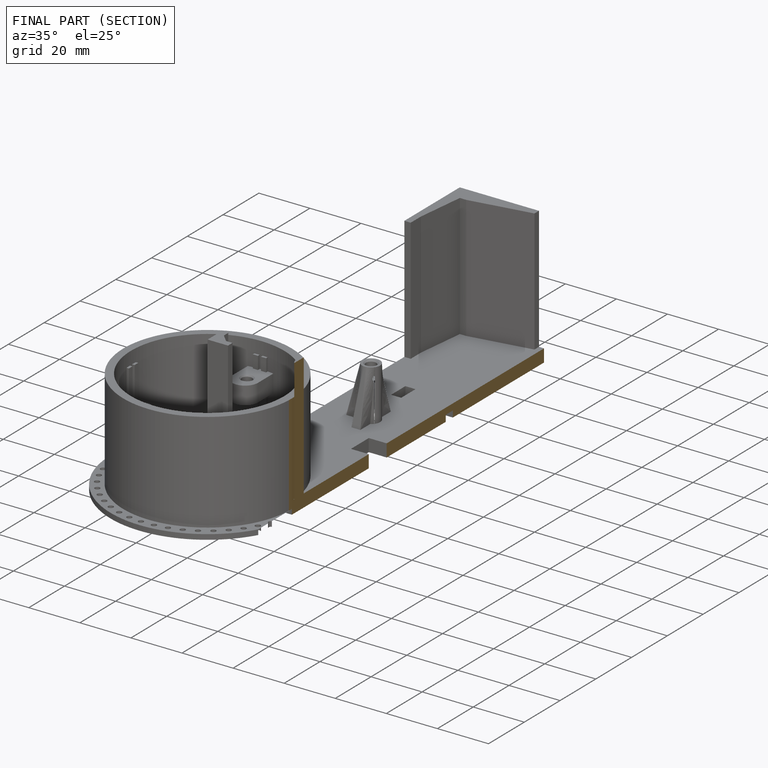
[diagram: finished part — half-section view (interior)]
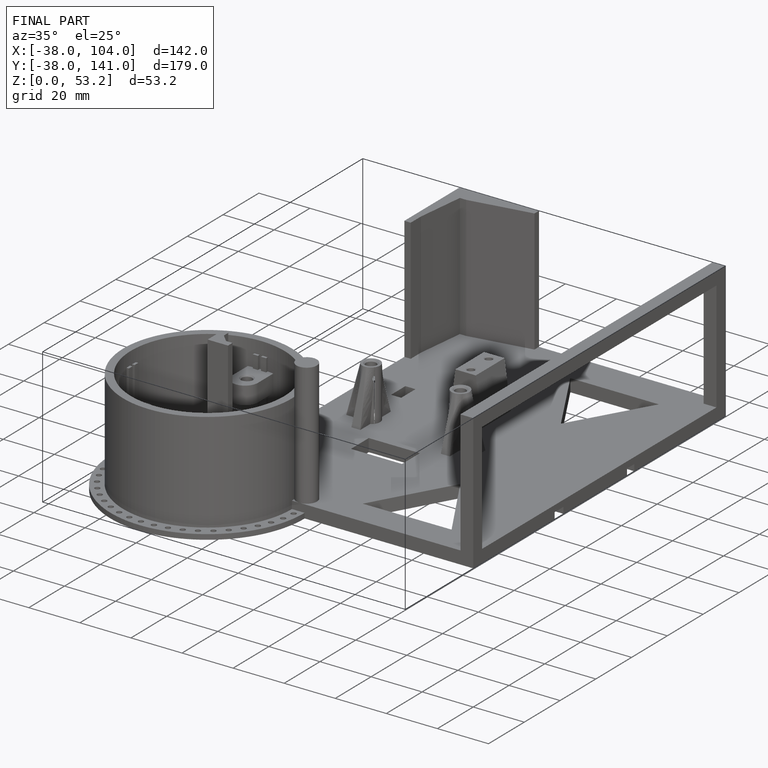
[diagram: finished part — iso view with bounding-box wireframe]
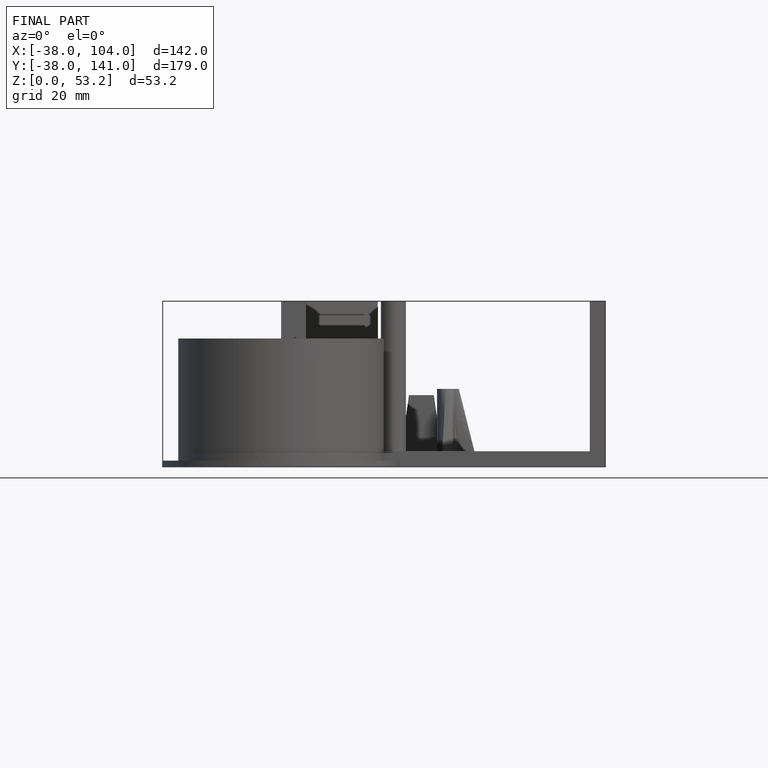
[diagram: finished part — front view with bounding-box wireframe]
